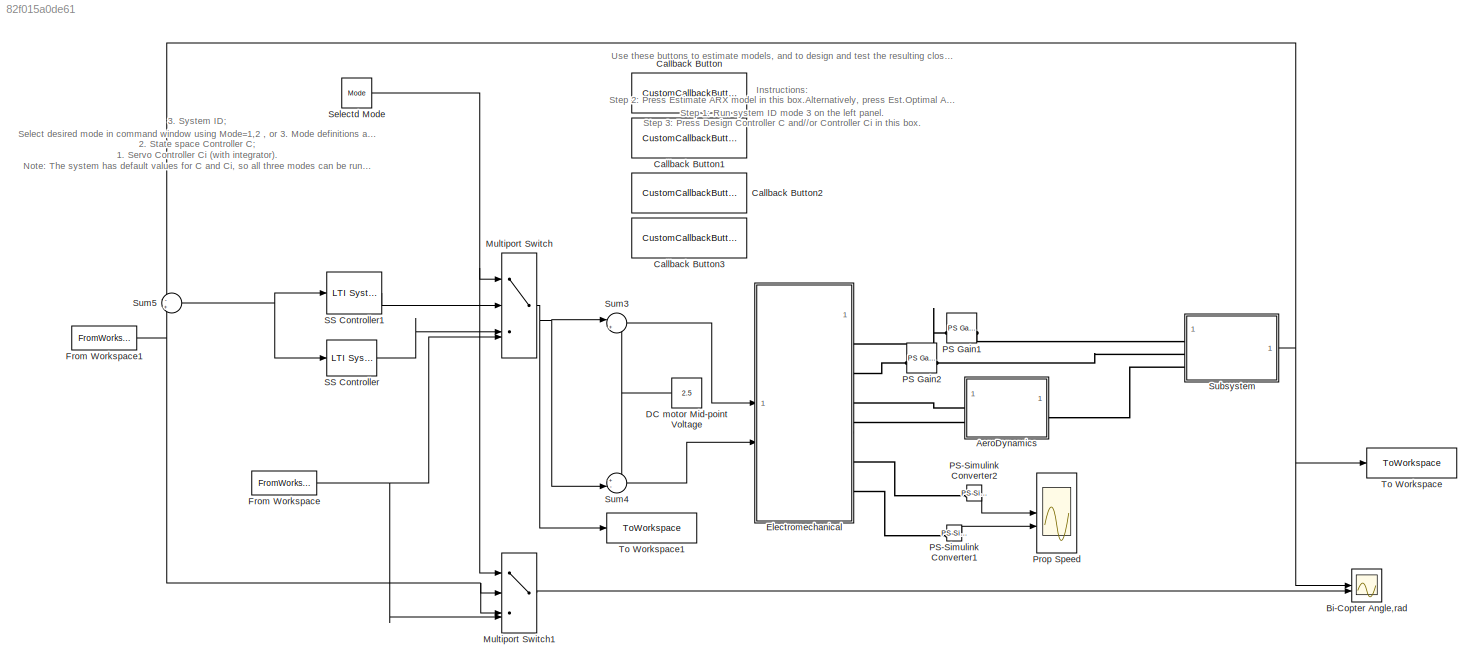
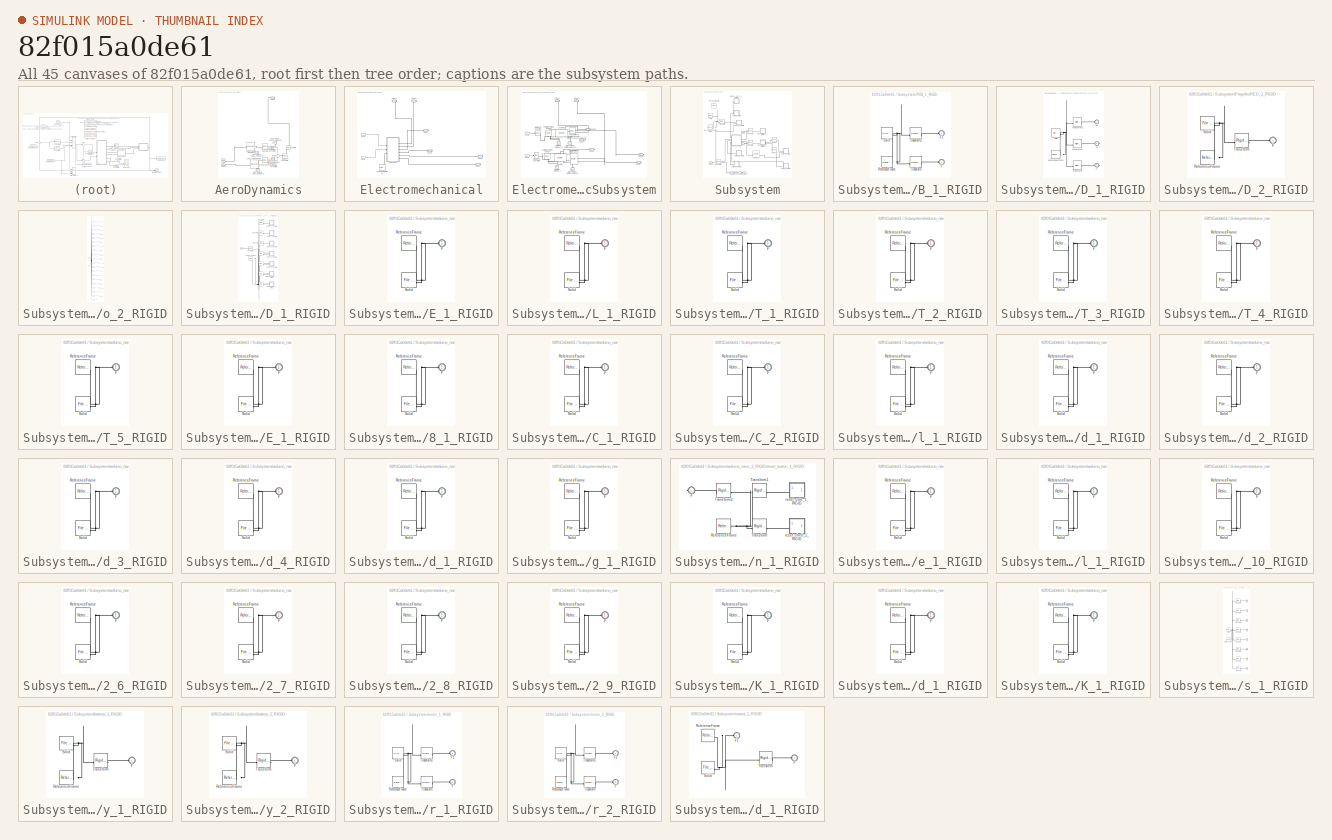
[diagram: thumbnail index - all 45 canvases of the model, root first then tree order]
MODEL slx_82f015a0de61
KIND model
CONFIG AbsTol = auto
CONFIG EnableMultiTasking = off
CONFIG FixedStep = .1
CONFIG MaxStep = auto
CONFIG MinStep = auto
CONFIG PreLoadFcn = t=[0:0.1:50];\ntest=[[0:0.1:50]' idinput(501,'rbs',[0 0.34])*1.5];\nref=[t' 0.5*(t<20)'-0.5*(t>=20)'];\nA=[    0.2836   -0.3349    0.0364   -0.0005    0.0000   -0.0002\n    0.7498    0.6987   -0.1388    0.0037    0.0004    0.0015\n   -0.1675    1.1221    0.3136    0.0165   -0.0017    0.0019\n    0.6639   -1.4850    0.9885    0.9441   -0.0081    0.0373\n    0.1266    0.2093   -0.2382   -0.0573    0.0678  ...<+1098ch>
CONFIG RelTol = 1e-3
CONFIG SampleTimeConstraint = Unconstrained
CONFIG SolverName = FixedStepAuto
CONFIG StartTime = 0.0
CONFIG StopTime = 50
WORKSPACE source: external: MATLAB File  (data not in archive)
BLOCK [SubSystem] AeroDynamics
BLOCK [Reference] AeroDynamics/Aerodynamic Propeller  REF=sdl_lib/Engines & Motors/Aerodynamic
Propeller
  SourceBlock = sdl_lib/Engines & Motors/Aerodynamic\nPropeller
  SourceType = Aerodynamic\nPropeller
BLOCK [Reference] AeroDynamics/Aerodynamic Propeller1  REF=sdl_lib/Engines & Motors/Aerodynamic
Propeller
  SourceBlock = sdl_lib/Engines & Motors/Aerodynamic\nPropeller
  SourceType = Aerodynamic\nPropeller
BLOCK [PMIOPort] AeroDynamics/Conn2
  Port = 2
  Side = Left
BLOCK [PMIOPort] AeroDynamics/Conn3
  Port = 3
  Side = Left
BLOCK [Reference] AeroDynamics/Ideal Force Sensor  REF=fl_lib/Mechanical/Mechanical Sensors/Ideal Force Sensor
  SourceBlock = fl_lib/Mechanical/Mechanical Sensors/Ideal Force Sensor
  SourceType = Ideal Force Sensor
BLOCK [Reference] AeroDynamics/Ideal Force Sensor1  REF=fl_lib/Mechanical/Mechanical Sensors/Ideal Force Sensor
  SourceBlock = fl_lib/Mechanical/Mechanical Sensors/Ideal Force Sensor
  SourceType = Ideal Force Sensor
BLOCK [Reference] AeroDynamics/Mechanical Translational Reference  REF=fl_lib/Mechanical/Translational
Elements/Mechanical
Translational
Reference
  NameLocation = right
  SourceBlock = fl_lib/Mechanical/Translational\nElements/Mechanical\nTranslational\nReference
  SourceType = Mechanical\nTranslational\nReference
BLOCK [Reference] AeroDynamics/Mechanical Translational Reference1  REF=fl_lib/Mechanical/Translational
Elements/Mechanical
Translational
Reference
  NameLocation = top
  SourceBlock = fl_lib/Mechanical/Translational\nElements/Mechanical\nTranslational\nReference
  SourceType = Mechanical\nTranslational\nReference
BLOCK [Reference] AeroDynamics/Mechanical Translational Reference2  REF=fl_lib/Mechanical/Translational
Elements/Mechanical
Translational
Reference
  NameLocation = right
  SourceBlock = fl_lib/Mechanical/Translational\nElements/Mechanical\nTranslational\nReference
  SourceType = Mechanical\nTranslational\nReference
BLOCK [Reference] AeroDynamics/Mechanical Translational Reference3  REF=fl_lib/Mechanical/Translational
Elements/Mechanical
Translational
Reference
  NameLocation = top
  SourceBlock = fl_lib/Mechanical/Translational\nElements/Mechanical\nTranslational\nReference
  SourceType = Mechanical\nTranslational\nReference
BLOCK [Reference] AeroDynamics/PS Gain  REF=fl_lib/Physical Signals/Functions/PS Gain
  NameLocation = right
  SourceBlock = fl_lib/Physical Signals/Functions/PS Gain
  SourceType = PS Gain
BLOCK [Reference] AeroDynamics/PS-Simulink Converter3  REF=nesl_utility/PS-Simulink
Converter
  SourceBlock = nesl_utility/PS-Simulink\nConverter
  SourceType = PS-Simulink\nConverter
BLOCK [Reference] AeroDynamics/PS-Simulink Converter4  REF=nesl_utility/PS-Simulink
Converter
  SourceBlock = nesl_utility/PS-Simulink\nConverter
  SourceType = PS-Simulink\nConverter
BLOCK [Reference] AeroDynamics/Simulink-PS Converter1  REF=nesl_utility/Simulink-PS
Converter
  SourceBlock = nesl_utility/Simulink-PS\nConverter
  SourceType = Simulink-PS\nConverter
BLOCK [Sum] AeroDynamics/Sum2
  Inputs = +-
BLOCK [PMIOPort] AeroDynamics/Torque
  Side = Right
BLOCK [Scope] Bi-Copter Angle,rad
  Floating = off
  NumInputPorts = 2
  ScopeSpecificationString = Simulink.scopes.TimeScopeBlockCfg('CurrentConfiguration', extmgr.ConfigurationSet(extmgr.Configuration('Core','General UI',true),extmgr.Configuration('Core','Source UI',true),extmgr.Configuration('Sources','WiredSimulink',true,'DataLoggingVariableName','ScopeData1'),extmgr.Configuration('Visuals','Time Domain',true,'SerializedDisplays',{struct('MinYLimReal','-2.07623','MaxYLimReal','2.90064','YLab...<+1582ch>
BLOCK [CustomCallbackButton] Callback Button
  Configuration = {"components":[{"name":"BackgroundImageComponent","settings":{"image":{"size":[0,0],"src":"default","srcOrientation":"Right"},"position":[0,0,1,1]}},{"name":"ButtonStateComponent","settings":{"buttonType":"momentary","clickFcn":"dat=iddata(out.y.data(160:end),out.u.data(160:end),0.1)\nsys=arx(dat,[6 6 0])\ncompare(dat,sys);shg","latched":true,"offValue":0,"onValue":1,"position":[0,0,1,1],"pressDel...<+2288ch>
  CustomBackgroundColor = {"color":[0.9568627451,0.9568627451,0.9568627451],"show":true}
BLOCK [CustomCallbackButton] Callback Button1
  Configuration = {"components":[{"name":"BackgroundImageComponent","settings":{"image":{"size":[0,0],"src":"default","srcOrientation":"Right"},"position":[0,0,1,1]}},{"name":"ButtonStateComponent","settings":{"buttonType":"momentary","clickFcn":"syss=ss(sys);\n[K,S,CLP] = dlqr(syss.A,syss.B,syss.C'*syss.C,.0008,0)\nKe =acker(syss.A',syss.C',CLP)'\nAoc=syss.A-syss.B*K-Ke*syss.C;Boc=Ke;Coc=K;\nC=ss(Aoc,Boc,Coc,0,0.1...<+2415ch>
  CustomBackgroundColor = {"color":[0.9568627451,0.9568627451,0.9568627451],"show":true}
BLOCK [CustomCallbackButton] Callback Button2
  Configuration = {"components":[{"name":"BackgroundImageComponent","settings":{"image":{"size":[0,0],"src":"default","srcOrientation":"Right"},"position":[0,0,1,1]}},{"name":"ButtonStateComponent","settings":{"buttonType":"momentary","clickFcn":"syss=ss(sys);\n[K,S,CLP] = dlqr(syss.A,syss.B,syss.C'*syss.C,.0008,0)\nKe =acker(syss.A',syss.C',CLP)'\nAoc=syss.A-syss.B*K-Ke*syss.C;Boc=Ke;Coc=K;\n% Integrator added to ...<+2716ch>
  CustomBackgroundColor = {"color":[0.9568627451,0.9568627451,0.9568627451],"show":true}
BLOCK [CustomCallbackButton] Callback Button3
  Configuration = {"components":[{"name":"BackgroundImageComponent","settings":{"image":{"size":[0,0],"src":"default","srcOrientation":"Right"},"position":[0,0,1,1]}},{"name":"ButtonStateComponent","settings":{"buttonType":"momentary","clickFcn":"dat=iddata(out.y.data(160:end),out.u.data(160:end),0.1);\nNN = struc(3:10,3:10,0:10);\nV = arxstruc(dat,dat,NN);\nS=selstruc(V)\nsys=arx(dat,S)\ncompare(dat,sys)","latched...<+2391ch>
  CustomBackgroundColor = {"color":[0.9568627451,0.9568627451,0.9568627451],"show":true}
BLOCK [Constant] DC motor Mid-point Voltage
  Value = 2.5
BLOCK [SubSystem] Electromechanical
BLOCK [PMIOPort] Electromechanical/Conn1
  Side = Right
BLOCK [PMIOPort] Electromechanical/Conn2
  Port = 2
  Side = Right
BLOCK [PMIOPort] Electromechanical/Conn3
  Port = 3
  Side = Right
BLOCK [PMIOPort] Electromechanical/Conn5
  Port = 4
  Side = Right
BLOCK [PMIOPort] Electromechanical/Conn6
  Port = 5
  Side = Right
BLOCK [PMIOPort] Electromechanical/Conn7
  Port = 6
  Side = Right
BLOCK [Reference] Electromechanical/Solver Configuration2  REF=nesl_utility/Solver
Configuration
  NameLocation = right
  SourceBlock = nesl_utility/Solver\nConfiguration
  SourceType = Solver\nConfiguration
BLOCK [SubSystem] Electromechanical/Subsystem
BLOCK [PMIOPort] Electromechanical/Subsystem/Conn1
  Side = Right
BLOCK [PMIOPort] Electromechanical/Subsystem/Conn2
  Port = 2
  Side = Right
BLOCK [PMIOPort] Electromechanical/Subsystem/Conn3
  Port = 3
  Side = Right
BLOCK [PMIOPort] Electromechanical/Subsystem/Conn4
  Port = 4
  Side = Left
BLOCK [PMIOPort] Electromechanical/Subsystem/Conn5
  Port = 5
  Side = Right
BLOCK [PMIOPort] Electromechanical/Subsystem/Conn6
  Port = 6
  Side = Right
BLOCK [PMIOPort] Electromechanical/Subsystem/Conn7
  Port = 7
  Side = Right
BLOCK [Reference] Electromechanical/Subsystem/Controlled Voltage Source  REF=fl_lib/Electrical/Electrical Sources/Controlled Voltage
Source
  NameLocation = right
  SourceBlock = fl_lib/Electrical/Electrical Sources/Controlled Voltage\nSource
  SourceType = Controlled Voltage\nSource
BLOCK [Reference] Electromechanical/Subsystem/Controlled Voltage Source1  REF=fl_lib/Electrical/Electrical Sources/Controlled Voltage
Source
  NameLocation = right
  SourceBlock = fl_lib/Electrical/Electrical Sources/Controlled Voltage\nSource
  SourceType = Controlled Voltage\nSource
BLOCK [Reference] Electromechanical/Subsystem/DC Motor  REF=ee_lib/Electromechanical/Brushed Motors/DC Motor
  NameLocation = right
  SourceBlock = ee_lib/Electromechanical/Brushed Motors/DC Motor
  SourceType = DC Motor
BLOCK [Reference] Electromechanical/Subsystem/DC Motor1  REF=ee_lib/Electromechanical/Brushed Motors/DC Motor
  NameLocation = right
  SourceBlock = ee_lib/Electromechanical/Brushed Motors/DC Motor
  SourceType = DC Motor
BLOCK [Reference] Electromechanical/Subsystem/Electrical Reference  REF=fl_lib/Electrical/Electrical Elements/Electrical Reference
  LibrarySourceBlock = ee_lib/Connectors &\nReferences/Electrical Reference
  NameLocation = right
  SourceBlock = fl_lib/Electrical/Electrical Elements/Electrical Reference
  SourceType = Electrical Reference
BLOCK [Reference] Electromechanical/Subsystem/Electrical Reference1  REF=fl_lib/Electrical/Electrical Elements/Electrical Reference
  NameLocation = right
  SourceBlock = fl_lib/Electrical/Electrical Elements/Electrical Reference
  SourceType = Electrical Reference
BLOCK [Reference] Electromechanical/Subsystem/Ideal Rotational Motion Sensor  REF=fl_lib/Mechanical/Mechanical Sensors/Ideal Rotational
Motion Sensor
  SourceBlock = fl_lib/Mechanical/Mechanical Sensors/Ideal Rotational\nMotion Sensor
  SourceType = Ideal Rotational\nMotion Sensor
BLOCK [Reference] Electromechanical/Subsystem/Ideal Rotational Motion Sensor1  REF=fl_lib/Mechanical/Mechanical Sensors/Ideal Rotational
Motion Sensor
  SourceBlock = fl_lib/Mechanical/Mechanical Sensors/Ideal Rotational\nMotion Sensor
  SourceType = Ideal Rotational\nMotion Sensor
BLOCK [Reference] Electromechanical/Subsystem/Mechanical Rotational Reference  REF=fl_lib/Mechanical/Rotational Elements/Mechanical
Rotational Reference
  SourceBlock = fl_lib/Mechanical/Rotational Elements/Mechanical\nRotational Reference
  SourceType = Mechanical\nRotational Reference
BLOCK [Reference] Electromechanical/Subsystem/Mechanical Rotational Reference1  REF=fl_lib/Mechanical/Rotational Elements/Mechanical
Rotational Reference
  SourceBlock = fl_lib/Mechanical/Rotational Elements/Mechanical\nRotational Reference
  SourceType = Mechanical\nRotational Reference
BLOCK [Reference] Electromechanical/Subsystem/Simulink-PS Converter  REF=nesl_utility/Simulink-PS
Converter
  SourceBlock = nesl_utility/Simulink-PS\nConverter
  SourceType = Simulink-PS\nConverter
BLOCK [Reference] Electromechanical/Subsystem/Simulink-PS Converter2  REF=nesl_utility/Simulink-PS
Converter
  SourceBlock = nesl_utility/Simulink-PS\nConverter
  SourceType = Simulink-PS\nConverter
BLOCK [Inport] Electromechanical/Subsystem/input0
BLOCK [Inport] Electromechanical/Subsystem/input1
  Port = 2
BLOCK [Inport] Electromechanical/input0
BLOCK [Inport] Electromechanical/input1
  Port = 2
BLOCK [FromWorkspace] From Workspace
  VariableName = test
BLOCK [FromWorkspace] From Workspace1
  VariableName = ref
BLOCK [MultiPortSwitch] Multiport Switch
  InputSameDT = off
  SaturateOnIntegerOverflow = off
BLOCK [MultiPortSwitch] Multiport Switch1
  InputSameDT = off
  SaturateOnIntegerOverflow = off
BLOCK [Reference] PS Gain1  REF=fl_lib/Physical Signals/Functions/PS Gain
  SourceBlock = fl_lib/Physical Signals/Functions/PS Gain
  SourceType = PS Gain
BLOCK [Reference] PS Gain2  REF=fl_lib/Physical Signals/Functions/PS Gain
  SourceBlock = fl_lib/Physical Signals/Functions/PS Gain
  SourceType = PS Gain
BLOCK [Reference] PS-Simulink Converter1  REF=nesl_utility/PS-Simulink
Converter
  SourceBlock = nesl_utility/PS-Simulink\nConverter
  SourceType = PS-Simulink\nConverter
BLOCK [Reference] PS-Simulink Converter2  REF=nesl_utility/PS-Simulink
Converter
  SourceBlock = nesl_utility/PS-Simulink\nConverter
  SourceType = PS-Simulink\nConverter
BLOCK [Scope] Prop Speed
  Floating = off
  NumInputPorts = 2
  ScopeSpecificationString = Simulink.scopes.TimeScopeBlockCfg('CurrentConfiguration', extmgr.ConfigurationSet(extmgr.Configuration('Core','General UI',true),extmgr.Configuration('Core','Source UI',true),extmgr.Configuration('Sources','WiredSimulink',true),extmgr.Configuration('Visuals','Time Domain',true,'SerializedDisplays',{struct('MinYLimReal','-248.93521','MaxYLimReal','2240.41689','YLabelReal','','MinYLimMag',' 0.00000'...<+1492ch>
BLOCK [Reference] SS Controller  REF=cstblocks/LTI System
  SourceBlock = cstblocks/LTI System
  SourceType = LTI Block
BLOCK [Reference] SS Controller1  REF=cstblocks/LTI System
  SourceBlock = cstblocks/LTI System
  SourceType = LTI Block
BLOCK [Constant] Selectd Mode
  Value = Mode
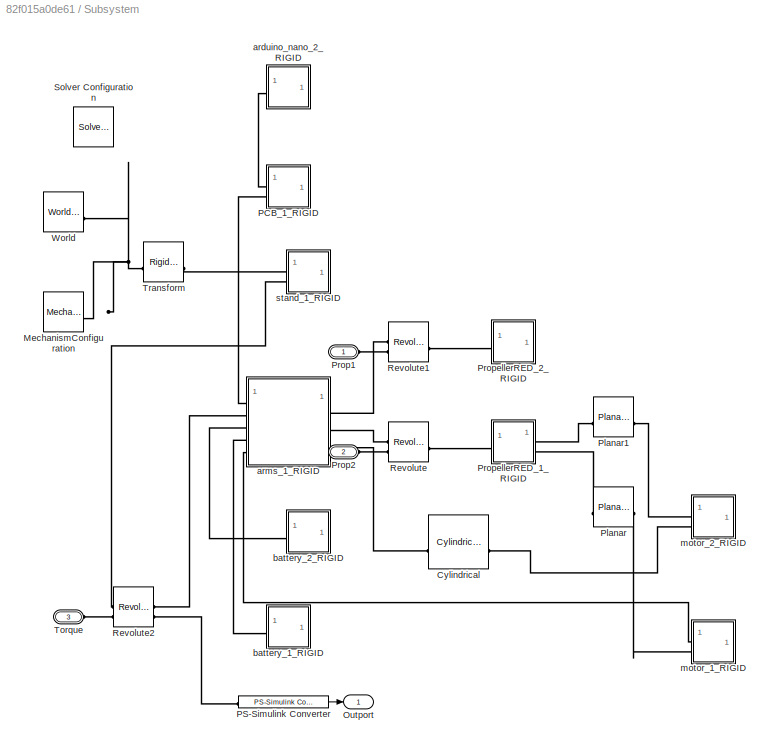
BLOCK [SubSystem] Subsystem
BLOCK [Reference] Subsystem/Cylindrical  REF=sm_lib/Joints/Cylindrical
Joint
  SourceBlock = sm_lib/Joints/Cylindrical\nJoint
  SourceType = Cylindrical\nJoint
BLOCK [Reference] Subsystem/MechanismConfiguration  REF=sm_lib/Utilities/Mechanism
Configuration
  SourceBlock = sm_lib/Utilities/Mechanism\nConfiguration
  SourceType = Mechanism\nConfiguration
BLOCK [Outport] Subsystem/Outport
BLOCK [SubSystem] Subsystem/PCB_1_RIGID
BLOCK [PMIOPort] Subsystem/PCB_1_RIGID/F
  Port = 2
  Side = Left
BLOCK [PMIOPort] Subsystem/PCB_1_RIGID/F1
  Side = Left
BLOCK [Reference] Subsystem/PCB_1_RIGID/ReferenceFrame  REF=sm_lib/Frames and
Transforms/Reference
Frame
  SourceBlock = sm_lib/Frames and\nTransforms/Reference\nFrame
  SourceType = Reference\nFrame
BLOCK [Reference] Subsystem/PCB_1_RIGID/Solid  REF=sm_lib/Body Elements/File Solid
  SourceBlock = sm_lib/Body Elements/File Solid
  SourceType = File Solid
BLOCK [Reference] Subsystem/PCB_1_RIGID/Transform  REF=sm_lib/Frames and
Transforms/Rigid
Transform
  SourceBlock = sm_lib/Frames and\nTransforms/Rigid\nTransform
  SourceType = Rigid\nTransform
BLOCK [Reference] Subsystem/PCB_1_RIGID/Transform1  REF=sm_lib/Frames and
Transforms/Rigid
Transform
  SourceBlock = sm_lib/Frames and\nTransforms/Rigid\nTransform
  SourceType = Rigid\nTransform
BLOCK [Reference] Subsystem/PS-Simulink Converter  REF=nesl_utility/PS-Simulink
Converter
  SourceBlock = nesl_utility/PS-Simulink\nConverter
  SourceType = PS-Simulink\nConverter
BLOCK [Reference] Subsystem/Planar  REF=sm_lib/Joints/Planar Joint
  SourceBlock = sm_lib/Joints/Planar Joint
  SourceType = Planar Joint
BLOCK [Reference] Subsystem/Planar1  REF=sm_lib/Joints/Planar Joint
  SourceBlock = sm_lib/Joints/Planar Joint
  SourceType = Planar Joint
BLOCK [PMIOPort] Subsystem/Prop1
  Side = Left
BLOCK [PMIOPort] Subsystem/Prop2
  Port = 2
  Side = Left
BLOCK [SubSystem] Subsystem/PropellerRED_1_RIGID
BLOCK [PMIOPort] Subsystem/PropellerRED_1_RIGID/F
  Port = 3
  Side = Right
BLOCK [PMIOPort] Subsystem/PropellerRED_1_RIGID/F1
  Port = 2
  Side = Right
BLOCK [PMIOPort] Subsystem/PropellerRED_1_RIGID/F2
  Side = Left
BLOCK [Reference] Subsystem/PropellerRED_1_RIGID/ReferenceFrame  REF=sm_lib/Frames and
Transforms/Reference
Frame
  SourceBlock = sm_lib/Frames and\nTransforms/Reference\nFrame
  SourceType = Reference\nFrame
BLOCK [Reference] Subsystem/PropellerRED_1_RIGID/Solid  REF=sm_lib/Body Elements/File Solid
  SourceBlock = sm_lib/Body Elements/File Solid
  SourceType = File Solid
BLOCK [Reference] Subsystem/PropellerRED_1_RIGID/Transform  REF=sm_lib/Frames and
Transforms/Rigid
Transform
  SourceBlock = sm_lib/Frames and\nTransforms/Rigid\nTransform
  SourceType = Rigid\nTransform
BLOCK [Reference] Subsystem/PropellerRED_1_RIGID/Transform1  REF=sm_lib/Frames and
Transforms/Rigid
Transform
  SourceBlock = sm_lib/Frames and\nTransforms/Rigid\nTransform
  SourceType = Rigid\nTransform
BLOCK [Reference] Subsystem/PropellerRED_1_RIGID/Transform2  REF=sm_lib/Frames and
Transforms/Rigid
Transform
  SourceBlock = sm_lib/Frames and\nTransforms/Rigid\nTransform
  SourceType = Rigid\nTransform
BLOCK [SubSystem] Subsystem/PropellerRED_2_RIGID
BLOCK [PMIOPort] Subsystem/PropellerRED_2_RIGID/F
  Side = Left
BLOCK [Reference] Subsystem/PropellerRED_2_RIGID/ReferenceFrame  REF=sm_lib/Frames and
Transforms/Reference
Frame
  SourceBlock = sm_lib/Frames and\nTransforms/Reference\nFrame
  SourceType = Reference\nFrame
BLOCK [Reference] Subsystem/PropellerRED_2_RIGID/Solid  REF=sm_lib/Body Elements/File Solid
  SourceBlock = sm_lib/Body Elements/File Solid
  SourceType = File Solid
BLOCK [Reference] Subsystem/PropellerRED_2_RIGID/Transform  REF=sm_lib/Frames and
Transforms/Rigid
Transform
  SourceBlock = sm_lib/Frames and\nTransforms/Rigid\nTransform
  SourceType = Rigid\nTransform
BLOCK [Reference] Subsystem/Revolute  REF=sm_lib/Joints/Revolute Joint
  SourceBlock = sm_lib/Joints/Revolute Joint
  SourceType = Revolute Joint
BLOCK [Reference] Subsystem/Revolute1  REF=sm_lib/Joints/Revolute Joint
  SourceBlock = sm_lib/Joints/Revolute Joint
  SourceType = Revolute Joint
BLOCK [Reference] Subsystem/Revolute2  REF=sm_lib/Joints/Revolute Joint
  SourceBlock = sm_lib/Joints/Revolute Joint
  SourceType = Revolute Joint
BLOCK [Reference] Subsystem/Solver Configuration  REF=nesl_utility/Solver
Configuration
  SourceBlock = nesl_utility/Solver\nConfiguration
  SourceType = Solver\nConfiguration
BLOCK [PMIOPort] Subsystem/Torque
  Port = 3
  Side = Left
BLOCK [Reference] Subsystem/Transform  REF=sm_lib/Frames and
Transforms/Rigid
Transform
  SourceBlock = sm_lib/Frames and\nTransforms/Rigid\nTransform
  SourceType = Rigid\nTransform
BLOCK [Reference] Subsystem/World  REF=sm_lib/Frames and
Transforms/World Frame
  SourceBlock = sm_lib/Frames and\nTransforms/World Frame
  SourceType = World Frame
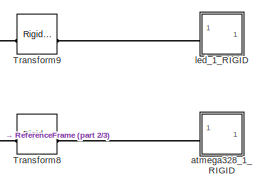
[diagram: Subsystem/arduino_nano_2_RIGID - part 1/3, top center region]
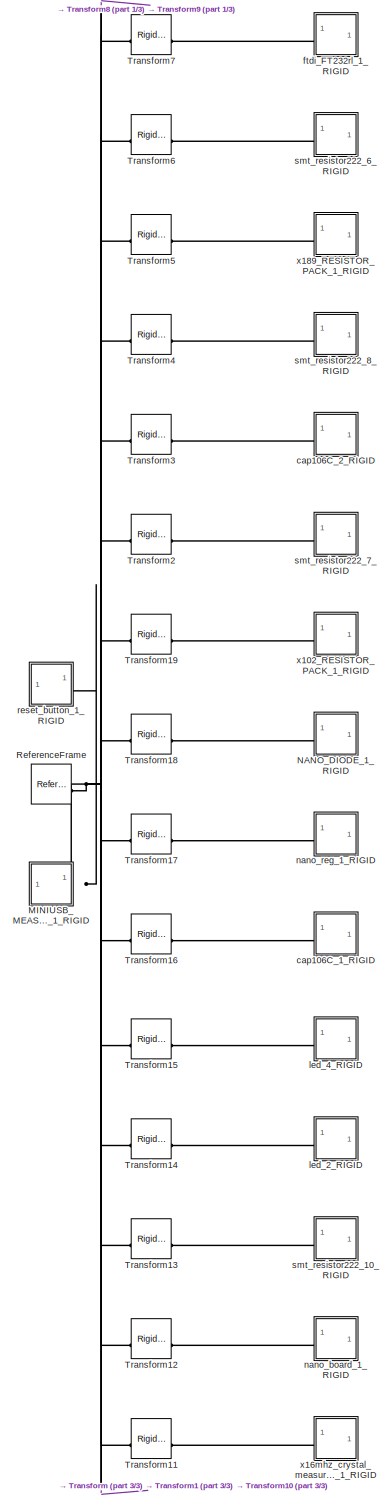
[diagram: Subsystem/arduino_nano_2_RIGID - part 2/3, full width, middle band]
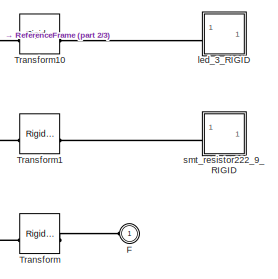
[diagram: Subsystem/arduino_nano_2_RIGID - part 3/3, bottom center region]
BLOCK [SubSystem] Subsystem/arduino_nano_2_RIGID
BLOCK [PMIOPort] Subsystem/arduino_nano_2_RIGID/F
  Side = Left
BLOCK [SubSystem] Subsystem/arduino_nano_2_RIGID/MINIUSB_MEASURED_1_RIGID
BLOCK [PMIOPort] Subsystem/arduino_nano_2_RIGID/MINIUSB_MEASURED_1_RIGID/F
  Side = Right
BLOCK [SubSystem] Subsystem/arduino_nano_2_RIGID/MINIUSB_MEASURED_1_RIGID/MINIUSBCORE_1_RIGID
BLOCK [PMIOPort] Subsystem/arduino_nano_2_RIGID/MINIUSB_MEASURED_1_RIGID/MINIUSBCORE_1_RIGID/F
  Side = Left
BLOCK [Reference] Subsystem/arduino_nano_2_RIGID/MINIUSB_MEASURED_1_RIGID/MINIUSBCORE_1_RIGID/ReferenceFrame  REF=sm_lib/Frames and
Transforms/Reference
Frame
  SourceBlock = sm_lib/Frames and\nTransforms/Reference\nFrame
  SourceType = Reference\nFrame
BLOCK [Reference] Subsystem/arduino_nano_2_RIGID/MINIUSB_MEASURED_1_RIGID/MINIUSBCORE_1_RIGID/Solid  REF=sm_lib/Body Elements/File Solid
  SourceBlock = sm_lib/Body Elements/File Solid
  SourceType = File Solid
BLOCK [SubSystem] Subsystem/arduino_nano_2_RIGID/MINIUSB_MEASURED_1_RIGID/MINIUSBSHELL_1_RIGID
BLOCK [PMIOPort] Subsystem/arduino_nano_2_RIGID/MINIUSB_MEASURED_1_RIGID/MINIUSBSHELL_1_RIGID/F
  Side = Left
BLOCK [Reference] Subsystem/arduino_nano_2_RIGID/MINIUSB_MEASURED_1_RIGID/MINIUSBSHELL_1_RIGID/ReferenceFrame  REF=sm_lib/Frames and
Transforms/Reference
Frame
  SourceBlock = sm_lib/Frames and\nTransforms/Reference\nFrame
  SourceType = Reference\nFrame
BLOCK [Reference] Subsystem/arduino_nano_2_RIGID/MINIUSB_MEASURED_1_RIGID/MINIUSBSHELL_1_RIGID/Solid  REF=sm_lib/Body Elements/File Solid
  SourceBlock = sm_lib/Body Elements/File Solid
  SourceType = File Solid
BLOCK [SubSystem] Subsystem/arduino_nano_2_RIGID/MINIUSB_MEASURED_1_RIGID/MINI_USB_CONTACT_1_RIGID
BLOCK [PMIOPort] Subsystem/arduino_nano_2_RIGID/MINIUSB_MEASURED_1_RIGID/MINI_USB_CONTACT_1_RIGID/F
  Side = Left
BLOCK [Reference] Subsystem/arduino_nano_2_RIGID/MINIUSB_MEASURED_1_RIGID/MINI_USB_CONTACT_1_RIGID/ReferenceFrame  REF=sm_lib/Frames and
Transforms/Reference
Frame
  SourceBlock = sm_lib/Frames and\nTransforms/Reference\nFrame
  SourceType = Reference\nFrame
BLOCK [Reference] Subsystem/arduino_nano_2_RIGID/MINIUSB_MEASURED_1_RIGID/MINI_USB_CONTACT_1_RIGID/Solid  REF=sm_lib/Body Elements/File Solid
  SourceBlock = sm_lib/Body Elements/File Solid
  SourceType = File Solid
BLOCK [SubSystem] Subsystem/arduino_nano_2_RIGID/MINIUSB_MEASURED_1_RIGID/MINI_USB_CONTACT_2_RIGID
BLOCK [PMIOPort] Subsystem/arduino_nano_2_RIGID/MINIUSB_MEASURED_1_RIGID/MINI_USB_CONTACT_2_RIGID/F
  Side = Left
BLOCK [Reference] Subsystem/arduino_nano_2_RIGID/MINIUSB_MEASURED_1_RIGID/MINI_USB_CONTACT_2_RIGID/ReferenceFrame  REF=sm_lib/Frames and
Transforms/Reference
Frame
  SourceBlock = sm_lib/Frames and\nTransforms/Reference\nFrame
  SourceType = Reference\nFrame
BLOCK [Reference] Subsystem/arduino_nano_2_RIGID/MINIUSB_MEASURED_1_RIGID/MINI_USB_CONTACT_2_RIGID/Solid  REF=sm_lib/Body Elements/File Solid
  SourceBlock = sm_lib/Body Elements/File Solid
  SourceType = File Solid
BLOCK [SubSystem] Subsystem/arduino_nano_2_RIGID/MINIUSB_MEASURED_1_RIGID/MINI_USB_CONTACT_3_RIGID
BLOCK [PMIOPort] Subsystem/arduino_nano_2_RIGID/MINIUSB_MEASURED_1_RIGID/MINI_USB_CONTACT_3_RIGID/F
  Side = Left
BLOCK [Reference] Subsystem/arduino_nano_2_RIGID/MINIUSB_MEASURED_1_RIGID/MINI_USB_CONTACT_3_RIGID/ReferenceFrame  REF=sm_lib/Frames and
Transforms/Reference
Frame
  SourceBlock = sm_lib/Frames and\nTransforms/Reference\nFrame
  SourceType = Reference\nFrame
BLOCK [Reference] Subsystem/arduino_nano_2_RIGID/MINIUSB_MEASURED_1_RIGID/MINI_USB_CONTACT_3_RIGID/Solid  REF=sm_lib/Body Elements/File Solid
  SourceBlock = sm_lib/Body Elements/File Solid
  SourceType = File Solid
BLOCK [SubSystem] Subsystem/arduino_nano_2_RIGID/MINIUSB_MEASURED_1_RIGID/MINI_USB_CONTACT_4_RIGID
BLOCK [PMIOPort] Subsystem/arduino_nano_2_RIGID/MINIUSB_MEASURED_1_RIGID/MINI_USB_CONTACT_4_RIGID/F
  Side = Left
BLOCK [Reference] Subsystem/arduino_nano_2_RIGID/MINIUSB_MEASURED_1_RIGID/MINI_USB_CONTACT_4_RIGID/ReferenceFrame  REF=sm_lib/Frames and
Transforms/Reference
Frame
  SourceBlock = sm_lib/Frames and\nTransforms/Reference\nFrame
  SourceType = Reference\nFrame
BLOCK [Reference] Subsystem/arduino_nano_2_RIGID/MINIUSB_MEASURED_1_RIGID/MINI_USB_CONTACT_4_RIGID/Solid  REF=sm_lib/Body Elements/File Solid
  SourceBlock = sm_lib/Body Elements/File Solid
  SourceType = File Solid
BLOCK [SubSystem] Subsystem/arduino_nano_2_RIGID/MINIUSB_MEASURED_1_RIGID/MINI_USB_CONTACT_5_RIGID
BLOCK [PMIOPort] Subsystem/arduino_nano_2_RIGID/MINIUSB_MEASURED_1_RIGID/MINI_USB_CONTACT_5_RIGID/F
  Side = Left
BLOCK [Reference] Subsystem/arduino_nano_2_RIGID/MINIUSB_MEASURED_1_RIGID/MINI_USB_CONTACT_5_RIGID/ReferenceFrame  REF=sm_lib/Frames and
Transforms/Reference
Frame
  SourceBlock = sm_lib/Frames and\nTransforms/Reference\nFrame
  SourceType = Reference\nFrame
BLOCK [Reference] Subsystem/arduino_nano_2_RIGID/MINIUSB_MEASURED_1_RIGID/MINI_USB_CONTACT_5_RIGID/Solid  REF=sm_lib/Body Elements/File Solid
  SourceBlock = sm_lib/Body Elements/File Solid
  SourceType = File Solid
BLOCK [Reference] Subsystem/arduino_nano_2_RIGID/MINIUSB_MEASURED_1_RIGID/ReferenceFrame  REF=sm_lib/Frames and
Transforms/Reference
Frame
  SourceBlock = sm_lib/Frames and\nTransforms/Reference\nFrame
  SourceType = Reference\nFrame
BLOCK [Reference] Subsystem/arduino_nano_2_RIGID/MINIUSB_MEASURED_1_RIGID/Transform  REF=sm_lib/Frames and
Transforms/Rigid
Transform
  SourceBlock = sm_lib/Frames and\nTransforms/Rigid\nTransform
  SourceType = Rigid\nTransform
BLOCK [Reference] Subsystem/arduino_nano_2_RIGID/MINIUSB_MEASURED_1_RIGID/Transform1  REF=sm_lib/Frames and
Transforms/Rigid
Transform
  SourceBlock = sm_lib/Frames and\nTransforms/Rigid\nTransform
  SourceType = Rigid\nTransform
BLOCK [Reference] Subsystem/arduino_nano_2_RIGID/MINIUSB_MEASURED_1_RIGID/Transform2  REF=sm_lib/Frames and
Transforms/Rigid
Transform
  SourceBlock = sm_lib/Frames and\nTransforms/Rigid\nTransform
  SourceType = Rigid\nTransform
BLOCK [Reference] Subsystem/arduino_nano_2_RIGID/MINIUSB_MEASURED_1_RIGID/Transform3  REF=sm_lib/Frames and
Transforms/Rigid
Transform
  SourceBlock = sm_lib/Frames and\nTransforms/Rigid\nTransform
  SourceType = Rigid\nTransform
BLOCK [Reference] Subsystem/arduino_nano_2_RIGID/MINIUSB_MEASURED_1_RIGID/Transform4  REF=sm_lib/Frames and
Transforms/Rigid
Transform
  SourceBlock = sm_lib/Frames and\nTransforms/Rigid\nTransform
  SourceType = Rigid\nTransform
BLOCK [Reference] Subsystem/arduino_nano_2_RIGID/MINIUSB_MEASURED_1_RIGID/Transform5  REF=sm_lib/Frames and
Transforms/Rigid
Transform
  SourceBlock = sm_lib/Frames and\nTransforms/Rigid\nTransform
  SourceType = Rigid\nTransform
BLOCK [Reference] Subsystem/arduino_nano_2_RIGID/MINIUSB_MEASURED_1_RIGID/Transform6  REF=sm_lib/Frames and
Transforms/Rigid
Transform
  SourceBlock = sm_lib/Frames and\nTransforms/Rigid\nTransform
  SourceType = Rigid\nTransform
BLOCK [Reference] Subsystem/arduino_nano_2_RIGID/MINIUSB_MEASURED_1_RIGID/Transform7  REF=sm_lib/Frames and
Transforms/Rigid
Transform
  SourceBlock = sm_lib/Frames and\nTransforms/Rigid\nTransform
  SourceType = Rigid\nTransform
BLOCK [SubSystem] Subsystem/arduino_nano_2_RIGID/NANO_DIODE_1_RIGID
BLOCK [PMIOPort] Subsystem/arduino_nano_2_RIGID/NANO_DIODE_1_RIGID/F
  Side = Left
BLOCK [Reference] Subsystem/arduino_nano_2_RIGID/NANO_DIODE_1_RIGID/ReferenceFrame  REF=sm_lib/Frames and
Transforms/Reference
Frame
  SourceBlock = sm_lib/Frames and\nTransforms/Reference\nFrame
  SourceType = Reference\nFrame
BLOCK [Reference] Subsystem/arduino_nano_2_RIGID/NANO_DIODE_1_RIGID/Solid  REF=sm_lib/Body Elements/File Solid
  SourceBlock = sm_lib/Body Elements/File Solid
  SourceType = File Solid
BLOCK [Reference] Subsystem/arduino_nano_2_RIGID/ReferenceFrame  REF=sm_lib/Frames and
Transforms/Reference
Frame
  SourceBlock = sm_lib/Frames and\nTransforms/Reference\nFrame
  SourceType = Reference\nFrame
BLOCK [Reference] Subsystem/arduino_nano_2_RIGID/Transform  REF=sm_lib/Frames and
Transforms/Rigid
Transform
  SourceBlock = sm_lib/Frames and\nTransforms/Rigid\nTransform
  SourceType = Rigid\nTransform
BLOCK [Reference] Subsystem/arduino_nano_2_RIGID/Transform1  REF=sm_lib/Frames and
Transforms/Rigid
Transform
  SourceBlock = sm_lib/Frames and\nTransforms/Rigid\nTransform
  SourceType = Rigid\nTransform
BLOCK [Reference] Subsystem/arduino_nano_2_RIGID/Transform10  REF=sm_lib/Frames and
Transforms/Rigid
Transform
  SourceBlock = sm_lib/Frames and\nTransforms/Rigid\nTransform
  SourceType = Rigid\nTransform
BLOCK [Reference] Subsystem/arduino_nano_2_RIGID/Transform11  REF=sm_lib/Frames and
Transforms/Rigid
Transform
  SourceBlock = sm_lib/Frames and\nTransforms/Rigid\nTransform
  SourceType = Rigid\nTransform
BLOCK [Reference] Subsystem/arduino_nano_2_RIGID/Transform12  REF=sm_lib/Frames and
Transforms/Rigid
Transform
  SourceBlock = sm_lib/Frames and\nTransforms/Rigid\nTransform
  SourceType = Rigid\nTransform
BLOCK [Reference] Subsystem/arduino_nano_2_RIGID/Transform13  REF=sm_lib/Frames and
Transforms/Rigid
Transform
  SourceBlock = sm_lib/Frames and\nTransforms/Rigid\nTransform
  SourceType = Rigid\nTransform
BLOCK [Reference] Subsystem/arduino_nano_2_RIGID/Transform14  REF=sm_lib/Frames and
Transforms/Rigid
Transform
  SourceBlock = sm_lib/Frames and\nTransforms/Rigid\nTransform
  SourceType = Rigid\nTransform
BLOCK [Reference] Subsystem/arduino_nano_2_RIGID/Transform15  REF=sm_lib/Frames and
Transforms/Rigid
Transform
  SourceBlock = sm_lib/Frames and\nTransforms/Rigid\nTransform
  SourceType = Rigid\nTransform
BLOCK [Reference] Subsystem/arduino_nano_2_RIGID/Transform16  REF=sm_lib/Frames and
Transforms/Rigid
Transform
  SourceBlock = sm_lib/Frames and\nTransforms/Rigid\nTransform
  SourceType = Rigid\nTransform
BLOCK [Reference] Subsystem/arduino_nano_2_RIGID/Transform17  REF=sm_lib/Frames and
Transforms/Rigid
Transform
  SourceBlock = sm_lib/Frames and\nTransforms/Rigid\nTransform
  SourceType = Rigid\nTransform
BLOCK [Reference] Subsystem/arduino_nano_2_RIGID/Transform18  REF=sm_lib/Frames and
Transforms/Rigid
Transform
  SourceBlock = sm_lib/Frames and\nTransforms/Rigid\nTransform
  SourceType = Rigid\nTransform
BLOCK [Reference] Subsystem/arduino_nano_2_RIGID/Transform19  REF=sm_lib/Frames and
Transforms/Rigid
Transform
  SourceBlock = sm_lib/Frames and\nTransforms/Rigid\nTransform
  SourceType = Rigid\nTransform
BLOCK [Reference] Subsystem/arduino_nano_2_RIGID/Transform2  REF=sm_lib/Frames and
Transforms/Rigid
Transform
  SourceBlock = sm_lib/Frames and\nTransforms/Rigid\nTransform
  SourceType = Rigid\nTransform
BLOCK [Reference] Subsystem/arduino_nano_2_RIGID/Transform3  REF=sm_lib/Frames and
Transforms/Rigid
Transform
  SourceBlock = sm_lib/Frames and\nTransforms/Rigid\nTransform
  SourceType = Rigid\nTransform
BLOCK [Reference] Subsystem/arduino_nano_2_RIGID/Transform4  REF=sm_lib/Frames and
Transforms/Rigid
Transform
  SourceBlock = sm_lib/Frames and\nTransforms/Rigid\nTransform
  SourceType = Rigid\nTransform
BLOCK [Reference] Subsystem/arduino_nano_2_RIGID/Transform5  REF=sm_lib/Frames and
Transforms/Rigid
Transform
  SourceBlock = sm_lib/Frames and\nTransforms/Rigid\nTransform
  SourceType = Rigid\nTransform
BLOCK [Reference] Subsystem/arduino_nano_2_RIGID/Transform6  REF=sm_lib/Frames and
Transforms/Rigid
Transform
  SourceBlock = sm_lib/Frames and\nTransforms/Rigid\nTransform
  SourceType = Rigid\nTransform
BLOCK [Reference] Subsystem/arduino_nano_2_RIGID/Transform7  REF=sm_lib/Frames and
Transforms/Rigid
Transform
  SourceBlock = sm_lib/Frames and\nTransforms/Rigid\nTransform
  SourceType = Rigid\nTransform
BLOCK [Reference] Subsystem/arduino_nano_2_RIGID/Transform8  REF=sm_lib/Frames and
Transforms/Rigid
Transform
  SourceBlock = sm_lib/Frames and\nTransforms/Rigid\nTransform
  SourceType = Rigid\nTransform
BLOCK [Reference] Subsystem/arduino_nano_2_RIGID/Transform9  REF=sm_lib/Frames and
Transforms/Rigid
Transform
  SourceBlock = sm_lib/Frames and\nTransforms/Rigid\nTransform
  SourceType = Rigid\nTransform
BLOCK [SubSystem] Subsystem/arduino_nano_2_RIGID/atmega328_1_RIGID
BLOCK [PMIOPort] Subsystem/arduino_nano_2_RIGID/atmega328_1_RIGID/F
  Side = Left
BLOCK [Reference] Subsystem/arduino_nano_2_RIGID/atmega328_1_RIGID/ReferenceFrame  REF=sm_lib/Frames and
Transforms/Reference
Frame
  SourceBlock = sm_lib/Frames and\nTransforms/Reference\nFrame
  SourceType = Reference\nFrame
BLOCK [Reference] Subsystem/arduino_nano_2_RIGID/atmega328_1_RIGID/Solid  REF=sm_lib/Body Elements/File Solid
  SourceBlock = sm_lib/Body Elements/File Solid
  SourceType = File Solid
BLOCK [SubSystem] Subsystem/arduino_nano_2_RIGID/cap106C_1_RIGID
BLOCK [PMIOPort] Subsystem/arduino_nano_2_RIGID/cap106C_1_RIGID/F
  Side = Left
BLOCK [Reference] Subsystem/arduino_nano_2_RIGID/cap106C_1_RIGID/ReferenceFrame  REF=sm_lib/Frames and
Transforms/Reference
Frame
  SourceBlock = sm_lib/Frames and\nTransforms/Reference\nFrame
  SourceType = Reference\nFrame
BLOCK [Reference] Subsystem/arduino_nano_2_RIGID/cap106C_1_RIGID/Solid  REF=sm_lib/Body Elements/File Solid
  SourceBlock = sm_lib/Body Elements/File Solid
  SourceType = File Solid
BLOCK [SubSystem] Subsystem/arduino_nano_2_RIGID/cap106C_2_RIGID
BLOCK [PMIOPort] Subsystem/arduino_nano_2_RIGID/cap106C_2_RIGID/F
  Side = Left
BLOCK [Reference] Subsystem/arduino_nano_2_RIGID/cap106C_2_RIGID/ReferenceFrame  REF=sm_lib/Frames and
Transforms/Reference
Frame
  SourceBlock = sm_lib/Frames and\nTransforms/Reference\nFrame
  SourceType = Reference\nFrame
BLOCK [Reference] Subsystem/arduino_nano_2_RIGID/cap106C_2_RIGID/Solid  REF=sm_lib/Body Elements/File Solid
  SourceBlock = sm_lib/Body Elements/File Solid
  SourceType = File Solid
BLOCK [SubSystem] Subsystem/arduino_nano_2_RIGID/ftdi_FT232rl_1_RIGID
BLOCK [PMIOPort] Subsystem/arduino_nano_2_RIGID/ftdi_FT232rl_1_RIGID/F
  Side = Left
BLOCK [Reference] Subsystem/arduino_nano_2_RIGID/ftdi_FT232rl_1_RIGID/ReferenceFrame  REF=sm_lib/Frames and
Transforms/Reference
Frame
  SourceBlock = sm_lib/Frames and\nTransforms/Reference\nFrame
  SourceType = Reference\nFrame
BLOCK [Reference] Subsystem/arduino_nano_2_RIGID/ftdi_FT232rl_1_RIGID/Solid  REF=sm_lib/Body Elements/File Solid
  SourceBlock = sm_lib/Body Elements/File Solid
  SourceType = File Solid
BLOCK [SubSystem] Subsystem/arduino_nano_2_RIGID/led_1_RIGID
BLOCK [PMIOPort] Subsystem/arduino_nano_2_RIGID/led_1_RIGID/F
  Side = Left
BLOCK [Reference] Subsystem/arduino_nano_2_RIGID/led_1_RIGID/ReferenceFrame  REF=sm_lib/Frames and
Transforms/Reference
Frame
  SourceBlock = sm_lib/Frames and\nTransforms/Reference\nFrame
  SourceType = Reference\nFrame
BLOCK [Reference] Subsystem/arduino_nano_2_RIGID/led_1_RIGID/Solid  REF=sm_lib/Body Elements/File Solid
  SourceBlock = sm_lib/Body Elements/File Solid
  SourceType = File Solid
BLOCK [SubSystem] Subsystem/arduino_nano_2_RIGID/led_2_RIGID
BLOCK [PMIOPort] Subsystem/arduino_nano_2_RIGID/led_2_RIGID/F
  Side = Left
BLOCK [Reference] Subsystem/arduino_nano_2_RIGID/led_2_RIGID/ReferenceFrame  REF=sm_lib/Frames and
Transforms/Reference
Frame
  SourceBlock = sm_lib/Frames and\nTransforms/Reference\nFrame
  SourceType = Reference\nFrame
BLOCK [Reference] Subsystem/arduino_nano_2_RIGID/led_2_RIGID/Solid  REF=sm_lib/Body Elements/File Solid
  SourceBlock = sm_lib/Body Elements/File Solid
  SourceType = File Solid
BLOCK [SubSystem] Subsystem/arduino_nano_2_RIGID/led_3_RIGID
BLOCK [PMIOPort] Subsystem/arduino_nano_2_RIGID/led_3_RIGID/F
  Side = Left
BLOCK [Reference] Subsystem/arduino_nano_2_RIGID/led_3_RIGID/ReferenceFrame  REF=sm_lib/Frames and
Transforms/Reference
Frame
  SourceBlock = sm_lib/Frames and\nTransforms/Reference\nFrame
  SourceType = Reference\nFrame
BLOCK [Reference] Subsystem/arduino_nano_2_RIGID/led_3_RIGID/Solid  REF=sm_lib/Body Elements/File Solid
  SourceBlock = sm_lib/Body Elements/File Solid
  SourceType = File Solid
BLOCK [SubSystem] Subsystem/arduino_nano_2_RIGID/led_4_RIGID
BLOCK [PMIOPort] Subsystem/arduino_nano_2_RIGID/led_4_RIGID/F
  Side = Left
BLOCK [Reference] Subsystem/arduino_nano_2_RIGID/led_4_RIGID/ReferenceFrame  REF=sm_lib/Frames and
Transforms/Reference
Frame
  SourceBlock = sm_lib/Frames and\nTransforms/Reference\nFrame
  SourceType = Reference\nFrame
BLOCK [Reference] Subsystem/arduino_nano_2_RIGID/led_4_RIGID/Solid  REF=sm_lib/Body Elements/File Solid
  SourceBlock = sm_lib/Body Elements/File Solid
  SourceType = File Solid
BLOCK [SubSystem] Subsystem/arduino_nano_2_RIGID/nano_board_1_RIGID
BLOCK [PMIOPort] Subsystem/arduino_nano_2_RIGID/nano_board_1_RIGID/F
  Side = Left
BLOCK [Reference] Subsystem/arduino_nano_2_RIGID/nano_board_1_RIGID/ReferenceFrame  REF=sm_lib/Frames and
Transforms/Reference
Frame
  SourceBlock = sm_lib/Frames and\nTransforms/Reference\nFrame
  SourceType = Reference\nFrame
BLOCK [Reference] Subsystem/arduino_nano_2_RIGID/nano_board_1_RIGID/Solid  REF=sm_lib/Body Elements/File Solid
  SourceBlock = sm_lib/Body Elements/File Solid
  SourceType = File Solid
BLOCK [SubSystem] Subsystem/arduino_nano_2_RIGID/nano_reg_1_RIGID
BLOCK [PMIOPort] Subsystem/arduino_nano_2_RIGID/nano_reg_1_RIGID/F
  Side = Left
BLOCK [Reference] Subsystem/arduino_nano_2_RIGID/nano_reg_1_RIGID/ReferenceFrame  REF=sm_lib/Frames and
Transforms/Reference
Frame
  SourceBlock = sm_lib/Frames and\nTransforms/Reference\nFrame
  SourceType = Reference\nFrame
BLOCK [Reference] Subsystem/arduino_nano_2_RIGID/nano_reg_1_RIGID/Solid  REF=sm_lib/Body Elements/File Solid
  SourceBlock = sm_lib/Body Elements/File Solid
  SourceType = File Solid
BLOCK [SubSystem] Subsystem/arduino_nano_2_RIGID/reset_button_1_RIGID
BLOCK [PMIOPort] Subsystem/arduino_nano_2_RIGID/reset_button_1_RIGID/F
  Side = Right
BLOCK [Reference] Subsystem/arduino_nano_2_RIGID/reset_button_1_RIGID/ReferenceFrame  REF=sm_lib/Frames and
Transforms/Reference
Frame
  SourceBlock = sm_lib/Frames and\nTransforms/Reference\nFrame
  SourceType = Reference\nFrame
BLOCK [Reference] Subsystem/arduino_nano_2_RIGID/reset_button_1_RIGID/Transform  REF=sm_lib/Frames and
Transforms/Rigid
Transform
  SourceBlock = sm_lib/Frames and\nTransforms/Rigid\nTransform
  SourceType = Rigid\nTransform
BLOCK [Reference] Subsystem/arduino_nano_2_RIGID/reset_button_1_RIGID/Transform1  REF=sm_lib/Frames and
Transforms/Rigid
Transform
  SourceBlock = sm_lib/Frames and\nTransforms/Rigid\nTransform
  SourceType = Rigid\nTransform
BLOCK [Reference] Subsystem/arduino_nano_2_RIGID/reset_button_1_RIGID/Transform2  REF=sm_lib/Frames and
Transforms/Rigid
Transform
  SourceBlock = sm_lib/Frames and\nTransforms/Rigid\nTransform
  SourceType = Rigid\nTransform
BLOCK [SubSystem] Subsystem/arduino_nano_2_RIGID/reset_button_1_RIGID/reset_core_1_RIGID
BLOCK [PMIOPort] Subsystem/arduino_nano_2_RIGID/reset_button_1_RIGID/reset_core_1_RIGID/F
  Side = Left
BLOCK [Reference] Subsystem/arduino_nano_2_RIGID/reset_button_1_RIGID/reset_core_1_RIGID/ReferenceFrame  REF=sm_lib/Frames and
Transforms/Reference
Frame
  SourceBlock = sm_lib/Frames and\nTransforms/Reference\nFrame
  SourceType = Reference\nFrame
BLOCK [Reference] Subsystem/arduino_nano_2_RIGID/reset_button_1_RIGID/reset_core_1_RIGID/Solid  REF=sm_lib/Body Elements/File Solid
  SourceBlock = sm_lib/Body Elements/File Solid
  SourceType = File Solid
BLOCK [SubSystem] Subsystem/arduino_nano_2_RIGID/reset_button_1_RIGID/reset_shell_1_RIGID
BLOCK [PMIOPort] Subsystem/arduino_nano_2_RIGID/reset_button_1_RIGID/reset_shell_1_RIGID/F
  Side = Left
BLOCK [Reference] Subsystem/arduino_nano_2_RIGID/reset_button_1_RIGID/reset_shell_1_RIGID/ReferenceFrame  REF=sm_lib/Frames and
Transforms/Reference
Frame
  SourceBlock = sm_lib/Frames and\nTransforms/Reference\nFrame
  SourceType = Reference\nFrame
BLOCK [Reference] Subsystem/arduino_nano_2_RIGID/reset_button_1_RIGID/reset_shell_1_RIGID/Solid  REF=sm_lib/Body Elements/File Solid
  SourceBlock = sm_lib/Body Elements/File Solid
  SourceType = File Solid
BLOCK [SubSystem] Subsystem/arduino_nano_2_RIGID/smt_resistor222_10_RIGID
BLOCK [PMIOPort] Subsystem/arduino_nano_2_RIGID/smt_resistor222_10_RIGID/F
  Side = Left
BLOCK [Reference] Subsystem/arduino_nano_2_RIGID/smt_resistor222_10_RIGID/ReferenceFrame  REF=sm_lib/Frames and
Transforms/Reference
Frame
  SourceBlock = sm_lib/Frames and\nTransforms/Reference\nFrame
  SourceType = Reference\nFrame
BLOCK [Reference] Subsystem/arduino_nano_2_RIGID/smt_resistor222_10_RIGID/Solid  REF=sm_lib/Body Elements/File Solid
  SourceBlock = sm_lib/Body Elements/File Solid
  SourceType = File Solid
BLOCK [SubSystem] Subsystem/arduino_nano_2_RIGID/smt_resistor222_6_RIGID
BLOCK [PMIOPort] Subsystem/arduino_nano_2_RIGID/smt_resistor222_6_RIGID/F
  Side = Left
BLOCK [Reference] Subsystem/arduino_nano_2_RIGID/smt_resistor222_6_RIGID/ReferenceFrame  REF=sm_lib/Frames and
Transforms/Reference
Frame
  SourceBlock = sm_lib/Frames and\nTransforms/Reference\nFrame
  SourceType = Reference\nFrame
BLOCK [Reference] Subsystem/arduino_nano_2_RIGID/smt_resistor222_6_RIGID/Solid  REF=sm_lib/Body Elements/File Solid
  SourceBlock = sm_lib/Body Elements/File Solid
  SourceType = File Solid
BLOCK [SubSystem] Subsystem/arduino_nano_2_RIGID/smt_resistor222_7_RIGID
BLOCK [PMIOPort] Subsystem/arduino_nano_2_RIGID/smt_resistor222_7_RIGID/F
  Side = Left
BLOCK [Reference] Subsystem/arduino_nano_2_RIGID/smt_resistor222_7_RIGID/ReferenceFrame  REF=sm_lib/Frames and
Transforms/Reference
Frame
  SourceBlock = sm_lib/Frames and\nTransforms/Reference\nFrame
  SourceType = Reference\nFrame
BLOCK [Reference] Subsystem/arduino_nano_2_RIGID/smt_resistor222_7_RIGID/Solid  REF=sm_lib/Body Elements/File Solid
  SourceBlock = sm_lib/Body Elements/File Solid
  SourceType = File Solid
BLOCK [SubSystem] Subsystem/arduino_nano_2_RIGID/smt_resistor222_8_RIGID
BLOCK [PMIOPort] Subsystem/arduino_nano_2_RIGID/smt_resistor222_8_RIGID/F
  Side = Left
BLOCK [Reference] Subsystem/arduino_nano_2_RIGID/smt_resistor222_8_RIGID/ReferenceFrame  REF=sm_lib/Frames and
Transforms/Reference
Frame
  SourceBlock = sm_lib/Frames and\nTransforms/Reference\nFrame
  SourceType = Reference\nFrame
BLOCK [Reference] Subsystem/arduino_nano_2_RIGID/smt_resistor222_8_RIGID/Solid  REF=sm_lib/Body Elements/File Solid
  SourceBlock = sm_lib/Body Elements/File Solid
  SourceType = File Solid
BLOCK [SubSystem] Subsystem/arduino_nano_2_RIGID/smt_resistor222_9_RIGID
BLOCK [PMIOPort] Subsystem/arduino_nano_2_RIGID/smt_resistor222_9_RIGID/F
  Side = Left
BLOCK [Reference] Subsystem/arduino_nano_2_RIGID/smt_resistor222_9_RIGID/ReferenceFrame  REF=sm_lib/Frames and
Transforms/Reference
Frame
  SourceBlock = sm_lib/Frames and\nTransforms/Reference\nFrame
  SourceType = Reference\nFrame
BLOCK [Reference] Subsystem/arduino_nano_2_RIGID/smt_resistor222_9_RIGID/Solid  REF=sm_lib/Body Elements/File Solid
  SourceBlock = sm_lib/Body Elements/File Solid
  SourceType = File Solid
BLOCK [SubSystem] Subsystem/arduino_nano_2_RIGID/x102_RESISTOR_PACK_1_RIGID
BLOCK [PMIOPort] Subsystem/arduino_nano_2_RIGID/x102_RESISTOR_PACK_1_RIGID/F
  Side = Left
BLOCK [Reference] Subsystem/arduino_nano_2_RIGID/x102_RESISTOR_PACK_1_RIGID/ReferenceFrame  REF=sm_lib/Frames and
Transforms/Reference
Frame
  SourceBlock = sm_lib/Frames and\nTransforms/Reference\nFrame
  SourceType = Reference\nFrame
BLOCK [Reference] Subsystem/arduino_nano_2_RIGID/x102_RESISTOR_PACK_1_RIGID/Solid  REF=sm_lib/Body Elements/File Solid
  SourceBlock = sm_lib/Body Elements/File Solid
  SourceType = File Solid
BLOCK [SubSystem] Subsystem/arduino_nano_2_RIGID/x16mhz_crystal_measured_1_RIGID
BLOCK [PMIOPort] Subsystem/arduino_nano_2_RIGID/x16mhz_crystal_measured_1_RIGID/F
  Side = Left
BLOCK [Reference] Subsystem/arduino_nano_2_RIGID/x16mhz_crystal_measured_1_RIGID/ReferenceFrame  REF=sm_lib/Frames and
Transforms/Reference
Frame
  SourceBlock = sm_lib/Frames and\nTransforms/Reference\nFrame
  SourceType = Reference\nFrame
BLOCK [Reference] Subsystem/arduino_nano_2_RIGID/x16mhz_crystal_measured_1_RIGID/Solid  REF=sm_lib/Body Elements/File Solid
  SourceBlock = sm_lib/Body Elements/File Solid
  SourceType = File Solid
BLOCK [SubSystem] Subsystem/arduino_nano_2_RIGID/x189_RESISTOR_PACK_1_RIGID
BLOCK [PMIOPort] Subsystem/arduino_nano_2_RIGID/x189_RESISTOR_PACK_1_RIGID/F
  Side = Left
BLOCK [Reference] Subsystem/arduino_nano_2_RIGID/x189_RESISTOR_PACK_1_RIGID/ReferenceFrame  REF=sm_lib/Frames and
Transforms/Reference
Frame
  SourceBlock = sm_lib/Frames and\nTransforms/Reference\nFrame
  SourceType = Reference\nFrame
BLOCK [Reference] Subsystem/arduino_nano_2_RIGID/x189_RESISTOR_PACK_1_RIGID/Solid  REF=sm_lib/Body Elements/File Solid
  SourceBlock = sm_lib/Body Elements/File Solid
  SourceType = File Solid
BLOCK [SubSystem] Subsystem/arms_1_RIGID
BLOCK [PMIOPort] Subsystem/arms_1_RIGID/F
  Port = 5
  Side = Left
BLOCK [PMIOPort] Subsystem/arms_1_RIGID/F1
  Port = 8
  Side = Right
BLOCK [PMIOPort] Subsystem/arms_1_RIGID/F2
  Port = 2
  Side = Left
BLOCK [PMIOPort] Subsystem/arms_1_RIGID/F3
  Port = 7
  Side = Right
BLOCK [PMIOPort] Subsystem/arms_1_RIGID/F4
  Port = 6
  Side = Right
BLOCK [PMIOPort] Subsystem/arms_1_RIGID/F5
  Port = 4
  Side = Left
BLOCK [PMIOPort] Subsystem/arms_1_RIGID/F6
  Port = 3
  Side = Left
BLOCK [PMIOPort] Subsystem/arms_1_RIGID/F7
  Side = Left
BLOCK [Reference] Subsystem/arms_1_RIGID/ReferenceFrame  REF=sm_lib/Frames and
Transforms/Reference
Frame
  SourceBlock = sm_lib/Frames and\nTransforms/Reference\nFrame
  SourceType = Reference\nFrame
BLOCK [Reference] Subsystem/arms_1_RIGID/Solid  REF=sm_lib/Body Elements/File Solid
  SourceBlock = sm_lib/Body Elements/File Solid
  SourceType = File Solid
BLOCK [Reference] Subsystem/arms_1_RIGID/Transform  REF=sm_lib/Frames and
Transforms/Rigid
Transform
  SourceBlock = sm_lib/Frames and\nTransforms/Rigid\nTransform
  SourceType = Rigid\nTransform
BLOCK [Reference] Subsystem/arms_1_RIGID/Transform1  REF=sm_lib/Frames and
Transforms/Rigid
Transform
  SourceBlock = sm_lib/Frames and\nTransforms/Rigid\nTransform
  SourceType = Rigid\nTransform
BLOCK [Reference] Subsystem/arms_1_RIGID/Transform2  REF=sm_lib/Frames and
Transforms/Rigid
Transform
  SourceBlock = sm_lib/Frames and\nTransforms/Rigid\nTransform
  SourceType = Rigid\nTransform
BLOCK [Reference] Subsystem/arms_1_RIGID/Transform3  REF=sm_lib/Frames and
Transforms/Rigid
Transform
  SourceBlock = sm_lib/Frames and\nTransforms/Rigid\nTransform
  SourceType = Rigid\nTransform
BLOCK [Reference] Subsystem/arms_1_RIGID/Transform4  REF=sm_lib/Frames and
Transforms/Rigid
Transform
  SourceBlock = sm_lib/Frames and\nTransforms/Rigid\nTransform
  SourceType = Rigid\nTransform
BLOCK [Reference] Subsystem/arms_1_RIGID/Transform5  REF=sm_lib/Frames and
Transforms/Rigid
Transform
  SourceBlock = sm_lib/Frames and\nTransforms/Rigid\nTransform
  SourceType = Rigid\nTransform
BLOCK [Reference] Subsystem/arms_1_RIGID/Transform6  REF=sm_lib/Frames and
Transforms/Rigid
Transform
  SourceBlock = sm_lib/Frames and\nTransforms/Rigid\nTransform
  SourceType = Rigid\nTransform
BLOCK [Reference] Subsystem/arms_1_RIGID/Transform7  REF=sm_lib/Frames and
Transforms/Rigid
Transform
  SourceBlock = sm_lib/Frames and\nTransforms/Rigid\nTransform
  SourceType = Rigid\nTransform
BLOCK [SubSystem] Subsystem/battery_1_RIGID
BLOCK [PMIOPort] Subsystem/battery_1_RIGID/F
  Side = Left
BLOCK [Reference] Subsystem/battery_1_RIGID/ReferenceFrame  REF=sm_lib/Frames and
Transforms/Reference
Frame
  SourceBlock = sm_lib/Frames and\nTransforms/Reference\nFrame
  SourceType = Reference\nFrame
BLOCK [Reference] Subsystem/battery_1_RIGID/Solid  REF=sm_lib/Body Elements/File Solid
  SourceBlock = sm_lib/Body Elements/File Solid
  SourceType = File Solid
BLOCK [Reference] Subsystem/battery_1_RIGID/Transform  REF=sm_lib/Frames and
Transforms/Rigid
Transform
  SourceBlock = sm_lib/Frames and\nTransforms/Rigid\nTransform
  SourceType = Rigid\nTransform
BLOCK [SubSystem] Subsystem/battery_2_RIGID
BLOCK [PMIOPort] Subsystem/battery_2_RIGID/F
  Side = Left
BLOCK [Reference] Subsystem/battery_2_RIGID/ReferenceFrame  REF=sm_lib/Frames and
Transforms/Reference
Frame
  SourceBlock = sm_lib/Frames and\nTransforms/Reference\nFrame
  SourceType = Reference\nFrame
BLOCK [Reference] Subsystem/battery_2_RIGID/Solid  REF=sm_lib/Body Elements/File Solid
  SourceBlock = sm_lib/Body Elements/File Solid
  SourceType = File Solid
BLOCK [Reference] Subsystem/battery_2_RIGID/Transform  REF=sm_lib/Frames and
Transforms/Rigid
Transform
  SourceBlock = sm_lib/Frames and\nTransforms/Rigid\nTransform
  SourceType = Rigid\nTransform
BLOCK [SubSystem] Subsystem/motor_1_RIGID
BLOCK [PMIOPort] Subsystem/motor_1_RIGID/F
  Side = Left
BLOCK [PMIOPort] Subsystem/motor_1_RIGID/F1
  Port = 2
  Side = Left
BLOCK [Reference] Subsystem/motor_1_RIGID/ReferenceFrame  REF=sm_lib/Frames and
Transforms/Reference
Frame
  SourceBlock = sm_lib/Frames and\nTransforms/Reference\nFrame
  SourceType = Reference\nFrame
BLOCK [Reference] Subsystem/motor_1_RIGID/Solid  REF=sm_lib/Body Elements/File Solid
  SourceBlock = sm_lib/Body Elements/File Solid
  SourceType = File Solid
BLOCK [Reference] Subsystem/motor_1_RIGID/Transform  REF=sm_lib/Frames and
Transforms/Rigid
Transform
  SourceBlock = sm_lib/Frames and\nTransforms/Rigid\nTransform
  SourceType = Rigid\nTransform
BLOCK [Reference] Subsystem/motor_1_RIGID/Transform1  REF=sm_lib/Frames and
Transforms/Rigid
Transform
  SourceBlock = sm_lib/Frames and\nTransforms/Rigid\nTransform
  SourceType = Rigid\nTransform
BLOCK [SubSystem] Subsystem/motor_2_RIGID
BLOCK [PMIOPort] Subsystem/motor_2_RIGID/F
  Port = 2
  Side = Left
BLOCK [PMIOPort] Subsystem/motor_2_RIGID/F1
  Side = Left
BLOCK [Reference] Subsystem/motor_2_RIGID/ReferenceFrame  REF=sm_lib/Frames and
Transforms/Reference
Frame
  SourceBlock = sm_lib/Frames and\nTransforms/Reference\nFrame
  SourceType = Reference\nFrame
BLOCK [Reference] Subsystem/motor_2_RIGID/Solid  REF=sm_lib/Body Elements/File Solid
  SourceBlock = sm_lib/Body Elements/File Solid
  SourceType = File Solid
BLOCK [Reference] Subsystem/motor_2_RIGID/Transform  REF=sm_lib/Frames and
Transforms/Rigid
Transform
  SourceBlock = sm_lib/Frames and\nTransforms/Rigid\nTransform
  SourceType = Rigid\nTransform
BLOCK [Reference] Subsystem/motor_2_RIGID/Transform1  REF=sm_lib/Frames and
Transforms/Rigid
Transform
  SourceBlock = sm_lib/Frames and\nTransforms/Rigid\nTransform
  SourceType = Rigid\nTransform
BLOCK [SubSystem] Subsystem/stand_1_RIGID
BLOCK [PMIOPort] Subsystem/stand_1_RIGID/F
  Port = 2
  Side = Left
BLOCK [PMIOPort] Subsystem/stand_1_RIGID/F1
  Side = Left
BLOCK [Reference] Subsystem/stand_1_RIGID/ReferenceFrame  REF=sm_lib/Frames and
Transforms/Reference
Frame
  SourceBlock = sm_lib/Frames and\nTransforms/Reference\nFrame
  SourceType = Reference\nFrame
BLOCK [Reference] Subsystem/stand_1_RIGID/Solid  REF=sm_lib/Body Elements/File Solid
  SourceBlock = sm_lib/Body Elements/File Solid
  SourceType = File Solid
BLOCK [Reference] Subsystem/stand_1_RIGID/Transform  REF=sm_lib/Frames and
Transforms/Rigid
Transform
  SourceBlock = sm_lib/Frames and\nTransforms/Rigid\nTransform
  SourceType = Rigid\nTransform
BLOCK [Sum] Sum3
  Inputs = |++
BLOCK [Sum] Sum4
  Inputs = +-|
BLOCK [Sum] Sum5
  Inputs = -+
BLOCK [ToWorkspace] To Workspace
  FixptAsFi = on
  MaxDataPoints = inf
  SampleTime = -1
  SaveFormat = Timeseries
  VariableName = y
BLOCK [ToWorkspace] To Workspace1
  FixptAsFi = on
  MaxDataPoints = inf
  SampleTime = -1
  SaveFormat = Timeseries
  VariableName = u
ANNOTATION (root): Select desired mode in command window using Mode=1,2 , or 3. Mode definitions are below: 3. System ID; 2. State space Controller C; 1. Servo Controller Ci (with integrator). Note: The system has default values for C and Ci, so all three modes can be run. If you would like to estimate your own model sys (ARX model), after runing Mode 3, press the buttons on the right to estimate ARX model, to desig...<+76ch>
ANNOTATION (root): Use these buttons to estimate models, and to design and test the resulting closed-loop controllers. Instructions: Step 1: Run system ID mode 3 on the left panel. Step 2: Press Estimate ARX model in this box.Alternatively, press Est.Optimal ARX. Step 3: Press Design Controller C and//or Controller Ci in this box. Step 4: Test performance of C and Ci by running modes 2 and 1, respectivly in the left...<+6ch>
LINE AeroDynamics/PS-Simulink Converter3:1 -> AeroDynamics/Sum2:1
LINE AeroDynamics/PS-Simulink Converter4:1 -> AeroDynamics/Sum2:2
LINE AeroDynamics/Sum2:1 -> AeroDynamics/Simulink-PS Converter1:1
NET DC motor Mid-point Voltage:1 -> Sum3:2, Sum4:1
LINE Electromechanical/Subsystem/input0:1 -> Electromechanical/Subsystem/Simulink-PS Converter:1
LINE Electromechanical/Subsystem/input1:1 -> Electromechanical/Subsystem/Simulink-PS Converter2:1
LINE Electromechanical/input0:1 -> Electromechanical/Subsystem:1
LINE Electromechanical/input1:1 -> Electromechanical/Subsystem:2
NET From Workspace1:1 -> Multiport Switch1:2, Multiport Switch1:3, Sum5:2
NET From Workspace:1 -> Multiport Switch1:4, Multiport Switch:4
LINE Multiport Switch1:1 -> Bi-Copter Angle,rad:2
NET Multiport Switch:1 -> Sum3:1, Sum4:2, To Workspace1:1
LINE PS-Simulink Converter1:1 -> Prop Speed:2
LINE PS-Simulink Converter2:1 -> Prop Speed:1
LINE SS Controller1:1 -> Multiport Switch:2
LINE SS Controller:1 -> Multiport Switch:3
NET Selectd Mode:1 -> Multiport Switch1:1, Multiport Switch:1
LINE Subsystem/PS-Simulink Converter:1 -> Subsystem/Outport:1
NET Subsystem:1 -> Bi-Copter Angle,rad:1, Sum5:1, To Workspace:1
LINE Sum3:1 -> Electromechanical:1
LINE Sum4:1 -> Electromechanical:2
NET Sum5:1 -> SS Controller1:1, SS Controller:1
PLINE AeroDynamics/Aerodynamic Propeller1:LConn1 -- AeroDynamics/Conn2:RConn1
PLINE AeroDynamics/Aerodynamic Propeller1:RConn1 -- AeroDynamics/Ideal Force Sensor1:LConn1
PLINE AeroDynamics/Aerodynamic Propeller1:RConn2 -- AeroDynamics/Mechanical Translational Reference2:LConn1
PLINE AeroDynamics/Aerodynamic Propeller:LConn1 -- AeroDynamics/Conn3:RConn1
PLINE AeroDynamics/Aerodynamic Propeller:RConn1 -- AeroDynamics/Ideal Force Sensor:LConn1
PLINE AeroDynamics/Aerodynamic Propeller:RConn2 -- AeroDynamics/Mechanical Translational Reference:LConn1
PLINE AeroDynamics/Ideal Force Sensor1:RConn1 -- AeroDynamics/Mechanical Translational Reference3:LConn1
PLINE AeroDynamics/Ideal Force Sensor1:RConn2 -- AeroDynamics/PS-Simulink Converter3:LConn1
PLINE AeroDynamics/Ideal Force Sensor:RConn1 -- AeroDynamics/Mechanical Translational Reference1:LConn1
PLINE AeroDynamics/Ideal Force Sensor:RConn2 -- AeroDynamics/PS-Simulink Converter4:LConn1
PLINE AeroDynamics/PS Gain:LConn1 -- AeroDynamics/Simulink-PS Converter1:RConn1
PLINE AeroDynamics/PS Gain:RConn1 -- AeroDynamics/Torque:RConn1
PLINE AeroDynamics:LConn1 -- Electromechanical:RConn3
PLINE AeroDynamics:LConn2 -- Electromechanical:RConn4
PLINE AeroDynamics:RConn1 -- Subsystem:LConn3
PLINE Electromechanical/Conn1:RConn1 -- Electromechanical/Subsystem:RConn1
PLINE Electromechanical/Conn2:RConn1 -- Electromechanical/Subsystem:RConn2
PLINE Electromechanical/Conn3:RConn1 -- Electromechanical/Subsystem:RConn3
PLINE Electromechanical/Conn5:RConn1 -- Electromechanical/Subsystem:RConn4
PLINE Electromechanical/Conn6:RConn1 -- Electromechanical/Subsystem:RConn5
PLINE Electromechanical/Conn7:RConn1 -- Electromechanical/Subsystem:RConn6
PLINE Electromechanical/Solver Configuration2:RConn1 -- Electromechanical/Subsystem:LConn1
PLINE Electromechanical/Subsystem/Conn1:RConn1 -- Electromechanical/Subsystem/Ideal Rotational Motion Sensor1:RConn2
PLINE Electromechanical/Subsystem/Conn2:RConn1 -- Electromechanical/Subsystem/Ideal Rotational Motion Sensor:RConn2
PNET net1: Electromechanical/Subsystem/Conn3:RConn1 -- Electromechanical/Subsystem/DC Motor1:LConn2 -- Electromechanical/Subsystem/Ideal Rotational Motion Sensor1:LConn1
PNET net2: Electromechanical/Subsystem/Conn4:RConn1 -- Electromechanical/Subsystem/DC Motor1:RConn2 -- Electromechanical/Subsystem/Mechanical Rotational Reference1:LConn1
PNET net3: Electromechanical/Subsystem/Conn5:RConn1 -- Electromechanical/Subsystem/DC Motor:LConn2 -- Electromechanical/Subsystem/Ideal Rotational Motion Sensor:LConn1
PLINE Electromechanical/Subsystem/Conn6:RConn1 -- Electromechanical/Subsystem/Ideal Rotational Motion Sensor1:RConn1
PLINE Electromechanical/Subsystem/Conn7:RConn1 -- Electromechanical/Subsystem/Ideal Rotational Motion Sensor:RConn1
PLINE Electromechanical/Subsystem/Controlled Voltage Source1:LConn1 -- Electromechanical/Subsystem/DC Motor1:LConn1
PLINE Electromechanical/Subsystem/Controlled Voltage Source1:RConn1 -- Electromechanical/Subsystem/Simulink-PS Converter:RConn1
PNET net4: Electromechanical/Subsystem/Controlled Voltage Source1:RConn2 -- Electromechanical/Subsystem/DC Motor1:RConn1 -- Electromechanical/Subsystem/Electrical Reference1:LConn1
PLINE Electromechanical/Subsystem/Controlled Voltage Source:LConn1 -- Electromechanical/Subsystem/DC Motor:LConn1
PLINE Electromechanical/Subsystem/Controlled Voltage Source:RConn1 -- Electromechanical/Subsystem/Simulink-PS Converter2:RConn1
PNET net5: Electromechanical/Subsystem/Controlled Voltage Source:RConn2 -- Electromechanical/Subsystem/DC Motor:RConn1 -- Electromechanical/Subsystem/Electrical Reference:LConn1
PLINE Electromechanical/Subsystem/DC Motor:RConn2 -- Electromechanical/Subsystem/Mechanical Rotational Reference:LConn1
PLINE Electromechanical:RConn1 -- PS Gain1:LConn1
PLINE Electromechanical:RConn2 -- PS Gain2:LConn1
PLINE Electromechanical:RConn5 -- PS-Simulink Converter2:LConn1
PLINE Electromechanical:RConn6 -- PS-Simulink Converter1:LConn1
PLINE PS Gain1:RConn1 -- Subsystem:LConn1
PLINE PS Gain2:RConn1 -- Subsystem:LConn2
PLINE Subsystem/Cylindrical:LConn1 -- Subsystem/arms_1_RIGID:RConn3
PLINE Subsystem/Cylindrical:RConn1 -- Subsystem/motor_2_RIGID:LConn2
PNET net6: Subsystem/MechanismConfiguration:RConn1 -- Subsystem/Transform:LConn1 -- Subsystem/World:RConn1
PLINE Subsystem/PCB_1_RIGID/F1:RConn1 -- Subsystem/PCB_1_RIGID/Transform1:RConn1
PLINE Subsystem/PCB_1_RIGID/F:RConn1 -- Subsystem/PCB_1_RIGID/Transform:RConn1
PNET net7: Subsystem/PCB_1_RIGID/ReferenceFrame:RConn1 -- Subsystem/PCB_1_RIGID/Solid:RConn1 -- Subsystem/PCB_1_RIGID/Transform1:LConn1 -- Subsystem/PCB_1_RIGID/Transform:LConn1
PLINE Subsystem/PCB_1_RIGID:LConn1 -- Subsystem/arduino_nano_2_RIGID:LConn1
PLINE Subsystem/PCB_1_RIGID:LConn2 -- Subsystem/arms_1_RIGID:LConn1
PLINE Subsystem/PS-Simulink Converter:LConn1 -- Subsystem/Revolute2:RConn2
PLINE Subsystem/Planar1:LConn1 -- Subsystem/PropellerRED_1_RIGID:RConn1
PLINE Subsystem/Planar1:RConn1 -- Subsystem/motor_2_RIGID:LConn1
PLINE Subsystem/Planar:LConn1 -- Subsystem/PropellerRED_1_RIGID:RConn2
PLINE Subsystem/Planar:RConn1 -- Subsystem/motor_1_RIGID:LConn2
PLINE Subsystem/Prop1:RConn1 -- Subsystem/Revolute1:LConn2
PLINE Subsystem/Prop2:RConn1 -- Subsystem/Revolute:LConn2
PLINE Subsystem/PropellerRED_1_RIGID/F1:RConn1 -- Subsystem/PropellerRED_1_RIGID/Transform1:RConn1
PLINE Subsystem/PropellerRED_1_RIGID/F2:RConn1 -- Subsystem/PropellerRED_1_RIGID/Transform2:RConn1
PLINE Subsystem/PropellerRED_1_RIGID/F:RConn1 -- Subsystem/PropellerRED_1_RIGID/Transform:RConn1
PNET net8: Subsystem/PropellerRED_1_RIGID/ReferenceFrame:RConn1 -- Subsystem/PropellerRED_1_RIGID/Solid:RConn1 -- Subsystem/PropellerRED_1_RIGID/Transform1:LConn1 -- Subsystem/PropellerRED_1_RIGID/Transform2:LConn1 -- Subsystem/PropellerRED_1_RIGID/Transform:LConn1
PLINE Subsystem/PropellerRED_1_RIGID:LConn1 -- Subsystem/Revolute:RConn1
PLINE Subsystem/PropellerRED_2_RIGID/F:RConn1 -- Subsystem/PropellerRED_2_RIGID/Transform:RConn1
PNET net9: Subsystem/PropellerRED_2_RIGID/ReferenceFrame:RConn1 -- Subsystem/PropellerRED_2_RIGID/Solid:RConn1 -- Subsystem/PropellerRED_2_RIGID/Transform:LConn1
PLINE Subsystem/PropellerRED_2_RIGID:LConn1 -- Subsystem/Revolute1:RConn1
PLINE Subsystem/Revolute1:LConn1 -- Subsystem/arms_1_RIGID:RConn1
PLINE Subsystem/Revolute2:LConn1 -- Subsystem/stand_1_RIGID:LConn2
PLINE Subsystem/Revolute2:LConn2 -- Subsystem/Torque:RConn1
PLINE Subsystem/Revolute2:RConn1 -- Subsystem/arms_1_RIGID:LConn2
PLINE Subsystem/Revolute:LConn1 -- Subsystem/arms_1_RIGID:RConn2
PLINE Subsystem/Transform:RConn1 -- Subsystem/stand_1_RIGID:LConn1
PLINE Subsystem/arduino_nano_2_RIGID/F:RConn1 -- Subsystem/arduino_nano_2_RIGID/Transform:RConn1
PLINE Subsystem/arduino_nano_2_RIGID/MINIUSB_MEASURED_1_RIGID/F:RConn1 -- Subsystem/arduino_nano_2_RIGID/MINIUSB_MEASURED_1_RIGID/Transform7:LConn1
PNET net10: Subsystem/arduino_nano_2_RIGID/MINIUSB_MEASURED_1_RIGID/MINIUSBCORE_1_RIGID/F:RConn1 -- Subsystem/arduino_nano_2_RIGID/MINIUSB_MEASURED_1_RIGID/MINIUSBCORE_1_RIGID/ReferenceFrame:RConn1 -- Subsystem/arduino_nano_2_RIGID/MINIUSB_MEASURED_1_RIGID/MINIUSBCORE_1_RIGID/Solid:RConn1
PLINE Subsystem/arduino_nano_2_RIGID/MINIUSB_MEASURED_1_RIGID/MINIUSBCORE_1_RIGID:LConn1 -- Subsystem/arduino_nano_2_RIGID/MINIUSB_MEASURED_1_RIGID/Transform:RConn1
PNET net11: Subsystem/arduino_nano_2_RIGID/MINIUSB_MEASURED_1_RIGID/MINIUSBSHELL_1_RIGID/F:RConn1 -- Subsystem/arduino_nano_2_RIGID/MINIUSB_MEASURED_1_RIGID/MINIUSBSHELL_1_RIGID/ReferenceFrame:RConn1 -- Subsystem/arduino_nano_2_RIGID/MINIUSB_MEASURED_1_RIGID/MINIUSBSHELL_1_RIGID/Solid:RConn1
PLINE Subsystem/arduino_nano_2_RIGID/MINIUSB_MEASURED_1_RIGID/MINIUSBSHELL_1_RIGID:LConn1 -- Subsystem/arduino_nano_2_RIGID/MINIUSB_MEASURED_1_RIGID/Transform1:RConn1
PNET net12: Subsystem/arduino_nano_2_RIGID/MINIUSB_MEASURED_1_RIGID/MINI_USB_CONTACT_1_RIGID/F:RConn1 -- Subsystem/arduino_nano_2_RIGID/MINIUSB_MEASURED_1_RIGID/MINI_USB_CONTACT_1_RIGID/ReferenceFrame:RConn1 -- Subsystem/arduino_nano_2_RIGID/MINIUSB_MEASURED_1_RIGID/MINI_USB_CONTACT_1_RIGID/Solid:RConn1
PLINE Subsystem/arduino_nano_2_RIGID/MINIUSB_MEASURED_1_RIGID/MINI_USB_CONTACT_1_RIGID:LConn1 -- Subsystem/arduino_nano_2_RIGID/MINIUSB_MEASURED_1_RIGID/Transform2:RConn1
PNET net13: Subsystem/arduino_nano_2_RIGID/MINIUSB_MEASURED_1_RIGID/MINI_USB_CONTACT_2_RIGID/F:RConn1 -- Subsystem/arduino_nano_2_RIGID/MINIUSB_MEASURED_1_RIGID/MINI_USB_CONTACT_2_RIGID/ReferenceFrame:RConn1 -- Subsystem/arduino_nano_2_RIGID/MINIUSB_MEASURED_1_RIGID/MINI_USB_CONTACT_2_RIGID/Solid:RConn1
PLINE Subsystem/arduino_nano_2_RIGID/MINIUSB_MEASURED_1_RIGID/MINI_USB_CONTACT_2_RIGID:LConn1 -- Subsystem/arduino_nano_2_RIGID/MINIUSB_MEASURED_1_RIGID/Transform3:RConn1
PNET net14: Subsystem/arduino_nano_2_RIGID/MINIUSB_MEASURED_1_RIGID/MINI_USB_CONTACT_3_RIGID/F:RConn1 -- Subsystem/arduino_nano_2_RIGID/MINIUSB_MEASURED_1_RIGID/MINI_USB_CONTACT_3_RIGID/ReferenceFrame:RConn1 -- Subsystem/arduino_nano_2_RIGID/MINIUSB_MEASURED_1_RIGID/MINI_USB_CONTACT_3_RIGID/Solid:RConn1
PLINE Subsystem/arduino_nano_2_RIGID/MINIUSB_MEASURED_1_RIGID/MINI_USB_CONTACT_3_RIGID:LConn1 -- Subsystem/arduino_nano_2_RIGID/MINIUSB_MEASURED_1_RIGID/Transform5:RConn1
PNET net15: Subsystem/arduino_nano_2_RIGID/MINIUSB_MEASURED_1_RIGID/MINI_USB_CONTACT_4_RIGID/F:RConn1 -- Subsystem/arduino_nano_2_RIGID/MINIUSB_MEASURED_1_RIGID/MINI_USB_CONTACT_4_RIGID/ReferenceFrame:RConn1 -- Subsystem/arduino_nano_2_RIGID/MINIUSB_MEASURED_1_RIGID/MINI_USB_CONTACT_4_RIGID/Solid:RConn1
PLINE Subsystem/arduino_nano_2_RIGID/MINIUSB_MEASURED_1_RIGID/MINI_USB_CONTACT_4_RIGID:LConn1 -- Subsystem/arduino_nano_2_RIGID/MINIUSB_MEASURED_1_RIGID/Transform6:RConn1
PNET net16: Subsystem/arduino_nano_2_RIGID/MINIUSB_MEASURED_1_RIGID/MINI_USB_CONTACT_5_RIGID/F:RConn1 -- Subsystem/arduino_nano_2_RIGID/MINIUSB_MEASURED_1_RIGID/MINI_USB_CONTACT_5_RIGID/ReferenceFrame:RConn1 -- Subsystem/arduino_nano_2_RIGID/MINIUSB_MEASURED_1_RIGID/MINI_USB_CONTACT_5_RIGID/Solid:RConn1
PLINE Subsystem/arduino_nano_2_RIGID/MINIUSB_MEASURED_1_RIGID/MINI_USB_CONTACT_5_RIGID:LConn1 -- Subsystem/arduino_nano_2_RIGID/MINIUSB_MEASURED_1_RIGID/Transform4:RConn1
PNET net17: Subsystem/arduino_nano_2_RIGID/MINIUSB_MEASURED_1_RIGID/ReferenceFrame:RConn1 -- Subsystem/arduino_nano_2_RIGID/MINIUSB_MEASURED_1_RIGID/Transform1:LConn1 -- Subsystem/arduino_nano_2_RIGID/MINIUSB_MEASURED_1_RIGID/Transform2:LConn1 -- Subsystem/arduino_nano_2_RIGID/MINIUSB_MEASURED_1_RIGID/Transform3:LConn1 -- Subsystem/arduino_nano_2_RIGID/MINIUSB_MEASURED_1_RIGID/Transform4:LConn1 -- Subsystem/arduino_nano_2_RIGID/MINIUSB_MEASURED_1_RIGID/Transform5:LConn1 -- Subsystem/arduino_nano_2_RIGID/MINIUSB_MEASURED_1_RIGID/Transform6:LConn1 -- Subsystem/arduino_nano_2_RIGID/MINIUSB_MEASURED_1_RIGID/Transform7:RConn1 -- Subsystem/arduino_nano_2_RIGID/MINIUSB_MEASURED_1_RIGID/Transform:LConn1
PNET net18: Subsystem/arduino_nano_2_RIGID/MINIUSB_MEASURED_1_RIGID:RConn1 -- Subsystem/arduino_nano_2_RIGID/ReferenceFrame:RConn1 -- Subsystem/arduino_nano_2_RIGID/Transform10:LConn1 -- Subsystem/arduino_nano_2_RIGID/Transform11:LConn1 -- Subsystem/arduino_nano_2_RIGID/Transform12:LConn1 -- Subsystem/arduino_nano_2_RIGID/Transform13:LConn1 -- Subsystem/arduino_nano_2_RIGID/Transform14:LConn1 -- Subsystem/arduino_nano_2_RIGID/Transform15:LConn1 -- Subsystem/arduino_nano_2_RIGID/Transform16:LConn1 -- Subsystem/arduino_nano_2_RIGID/Transform17:LConn1 -- Subsystem/arduino_nano_2_RIGID/Transform18:LConn1 -- Subsystem/arduino_nano_2_RIGID/Transform19:LConn1 -- Subsystem/arduino_nano_2_RIGID/Transform1:LConn1 -- Subsystem/arduino_nano_2_RIGID/Transform2:LConn1 -- Subsystem/arduino_nano_2_RIGID/Transform3:LConn1 -- Subsystem/arduino_nano_2_RIGID/Transform4:LConn1 -- Subsystem/arduino_nano_2_RIGID/Transform5:LConn1 -- Subsystem/arduino_nano_2_RIGID/Transform6:LConn1 -- Subsystem/arduino_nano_2_RIGID/Transform7:LConn1 -- Subsystem/arduino_nano_2_RIGID/Transform8:LConn1 -- Subsystem/arduino_nano_2_RIGID/Transform9:LConn1 -- Subsystem/arduino_nano_2_RIGID/Transform:LConn1 -- Subsystem/arduino_nano_2_RIGID/reset_button_1_RIGID:RConn1
PNET net19: Subsystem/arduino_nano_2_RIGID/NANO_DIODE_1_RIGID/F:RConn1 -- Subsystem/arduino_nano_2_RIGID/NANO_DIODE_1_RIGID/ReferenceFrame:RConn1 -- Subsystem/arduino_nano_2_RIGID/NANO_DIODE_1_RIGID/Solid:RConn1
PLINE Subsystem/arduino_nano_2_RIGID/NANO_DIODE_1_RIGID:LConn1 -- Subsystem/arduino_nano_2_RIGID/Transform18:RConn1
PLINE Subsystem/arduino_nano_2_RIGID/Transform10:RConn1 -- Subsystem/arduino_nano_2_RIGID/led_3_RIGID:LConn1
PLINE Subsystem/arduino_nano_2_RIGID/Transform11:RConn1 -- Subsystem/arduino_nano_2_RIGID/x16mhz_crystal_measured_1_RIGID:LConn1
PLINE Subsystem/arduino_nano_2_RIGID/Transform12:RConn1 -- Subsystem/arduino_nano_2_RIGID/nano_board_1_RIGID:LConn1
PLINE Subsystem/arduino_nano_2_RIGID/Transform13:RConn1 -- Subsystem/arduino_nano_2_RIGID/smt_resistor222_10_RIGID:LConn1
PLINE Subsystem/arduino_nano_2_RIGID/Transform14:RConn1 -- Subsystem/arduino_nano_2_RIGID/led_2_RIGID:LConn1
PLINE Subsystem/arduino_nano_2_RIGID/Transform15:RConn1 -- Subsystem/arduino_nano_2_RIGID/led_4_RIGID:LConn1
PLINE Subsystem/arduino_nano_2_RIGID/Transform16:RConn1 -- Subsystem/arduino_nano_2_RIGID/cap106C_1_RIGID:LConn1
PLINE Subsystem/arduino_nano_2_RIGID/Transform17:RConn1 -- Subsystem/arduino_nano_2_RIGID/nano_reg_1_RIGID:LConn1
PLINE Subsystem/arduino_nano_2_RIGID/Transform19:RConn1 -- Subsystem/arduino_nano_2_RIGID/x102_RESISTOR_PACK_1_RIGID:LConn1
PLINE Subsystem/arduino_nano_2_RIGID/Transform1:RConn1 -- Subsystem/arduino_nano_2_RIGID/smt_resistor222_9_RIGID:LConn1
PLINE Subsystem/arduino_nano_2_RIGID/Transform2:RConn1 -- Subsystem/arduino_nano_2_RIGID/smt_resistor222_7_RIGID:LConn1
PLINE Subsystem/arduino_nano_2_RIGID/Transform3:RConn1 -- Subsystem/arduino_nano_2_RIGID/cap106C_2_RIGID:LConn1
PLINE Subsystem/arduino_nano_2_RIGID/Transform4:RConn1 -- Subsystem/arduino_nano_2_RIGID/smt_resistor222_8_RIGID:LConn1
PLINE Subsystem/arduino_nano_2_RIGID/Transform5:RConn1 -- Subsystem/arduino_nano_2_RIGID/x189_RESISTOR_PACK_1_RIGID:LConn1
PLINE Subsystem/arduino_nano_2_RIGID/Transform6:RConn1 -- Subsystem/arduino_nano_2_RIGID/smt_resistor222_6_RIGID:LConn1
PLINE Subsystem/arduino_nano_2_RIGID/Transform7:RConn1 -- Subsystem/arduino_nano_2_RIGID/ftdi_FT232rl_1_RIGID:LConn1
PLINE Subsystem/arduino_nano_2_RIGID/Transform8:RConn1 -- Subsystem/arduino_nano_2_RIGID/atmega328_1_RIGID:LConn1
PLINE Subsystem/arduino_nano_2_RIGID/Transform9:RConn1 -- Subsystem/arduino_nano_2_RIGID/led_1_RIGID:LConn1
PNET net20: Subsystem/arduino_nano_2_RIGID/atmega328_1_RIGID/F:RConn1 -- Subsystem/arduino_nano_2_RIGID/atmega328_1_RIGID/ReferenceFrame:RConn1 -- Subsystem/arduino_nano_2_RIGID/atmega328_1_RIGID/Solid:RConn1
PNET net21: Subsystem/arduino_nano_2_RIGID/cap106C_1_RIGID/F:RConn1 -- Subsystem/arduino_nano_2_RIGID/cap106C_1_RIGID/ReferenceFrame:RConn1 -- Subsystem/arduino_nano_2_RIGID/cap106C_1_RIGID/Solid:RConn1
PNET net22: Subsystem/arduino_nano_2_RIGID/cap106C_2_RIGID/F:RConn1 -- Subsystem/arduino_nano_2_RIGID/cap106C_2_RIGID/ReferenceFrame:RConn1 -- Subsystem/arduino_nano_2_RIGID/cap106C_2_RIGID/Solid:RConn1
PNET net23: Subsystem/arduino_nano_2_RIGID/ftdi_FT232rl_1_RIGID/F:RConn1 -- Subsystem/arduino_nano_2_RIGID/ftdi_FT232rl_1_RIGID/ReferenceFrame:RConn1 -- Subsystem/arduino_nano_2_RIGID/ftdi_FT232rl_1_RIGID/Solid:RConn1
PNET net24: Subsystem/arduino_nano_2_RIGID/led_1_RIGID/F:RConn1 -- Subsystem/arduino_nano_2_RIGID/led_1_RIGID/ReferenceFrame:RConn1 -- Subsystem/arduino_nano_2_RIGID/led_1_RIGID/Solid:RConn1
PNET net25: Subsystem/arduino_nano_2_RIGID/led_2_RIGID/F:RConn1 -- Subsystem/arduino_nano_2_RIGID/led_2_RIGID/ReferenceFrame:RConn1 -- Subsystem/arduino_nano_2_RIGID/led_2_RIGID/Solid:RConn1
PNET net26: Subsystem/arduino_nano_2_RIGID/led_3_RIGID/F:RConn1 -- Subsystem/arduino_nano_2_RIGID/led_3_RIGID/ReferenceFrame:RConn1 -- Subsystem/arduino_nano_2_RIGID/led_3_RIGID/Solid:RConn1
PNET net27: Subsystem/arduino_nano_2_RIGID/led_4_RIGID/F:RConn1 -- Subsystem/arduino_nano_2_RIGID/led_4_RIGID/ReferenceFrame:RConn1 -- Subsystem/arduino_nano_2_RIGID/led_4_RIGID/Solid:RConn1
PNET net28: Subsystem/arduino_nano_2_RIGID/nano_board_1_RIGID/F:RConn1 -- Subsystem/arduino_nano_2_RIGID/nano_board_1_RIGID/ReferenceFrame:RConn1 -- Subsystem/arduino_nano_2_RIGID/nano_board_1_RIGID/Solid:RConn1
PNET net29: Subsystem/arduino_nano_2_RIGID/nano_reg_1_RIGID/F:RConn1 -- Subsystem/arduino_nano_2_RIGID/nano_reg_1_RIGID/ReferenceFrame:RConn1 -- Subsystem/arduino_nano_2_RIGID/nano_reg_1_RIGID/Solid:RConn1
PLINE Subsystem/arduino_nano_2_RIGID/reset_button_1_RIGID/F:RConn1 -- Subsystem/arduino_nano_2_RIGID/reset_button_1_RIGID/Transform2:LConn1
PNET net30: Subsystem/arduino_nano_2_RIGID/reset_button_1_RIGID/ReferenceFrame:RConn1 -- Subsystem/arduino_nano_2_RIGID/reset_button_1_RIGID/Transform1:LConn1 -- Subsystem/arduino_nano_2_RIGID/reset_button_1_RIGID/Transform2:RConn1 -- Subsystem/arduino_nano_2_RIGID/reset_button_1_RIGID/Transform:LConn1
PLINE Subsystem/arduino_nano_2_RIGID/reset_button_1_RIGID/Transform1:RConn1 -- Subsystem/arduino_nano_2_RIGID/reset_button_1_RIGID/reset_core_1_RIGID:LConn1
PLINE Subsystem/arduino_nano_2_RIGID/reset_button_1_RIGID/Transform:RConn1 -- Subsystem/arduino_nano_2_RIGID/reset_button_1_RIGID/reset_shell_1_RIGID:LConn1
PNET net31: Subsystem/arduino_nano_2_RIGID/reset_button_1_RIGID/reset_core_1_RIGID/F:RConn1 -- Subsystem/arduino_nano_2_RIGID/reset_button_1_RIGID/reset_core_1_RIGID/ReferenceFrame:RConn1 -- Subsystem/arduino_nano_2_RIGID/reset_button_1_RIGID/reset_core_1_RIGID/Solid:RConn1
PNET net32: Subsystem/arduino_nano_2_RIGID/reset_button_1_RIGID/reset_shell_1_RIGID/F:RConn1 -- Subsystem/arduino_nano_2_RIGID/reset_button_1_RIGID/reset_shell_1_RIGID/ReferenceFrame:RConn1 -- Subsystem/arduino_nano_2_RIGID/reset_button_1_RIGID/reset_shell_1_RIGID/Solid:RConn1
PNET net33: Subsystem/arduino_nano_2_RIGID/smt_resistor222_10_RIGID/F:RConn1 -- Subsystem/arduino_nano_2_RIGID/smt_resistor222_10_RIGID/ReferenceFrame:RConn1 -- Subsystem/arduino_nano_2_RIGID/smt_resistor222_10_RIGID/Solid:RConn1
PNET net34: Subsystem/arduino_nano_2_RIGID/smt_resistor222_6_RIGID/F:RConn1 -- Subsystem/arduino_nano_2_RIGID/smt_resistor222_6_RIGID/ReferenceFrame:RConn1 -- Subsystem/arduino_nano_2_RIGID/smt_resistor222_6_RIGID/Solid:RConn1
PNET net35: Subsystem/arduino_nano_2_RIGID/smt_resistor222_7_RIGID/F:RConn1 -- Subsystem/arduino_nano_2_RIGID/smt_resistor222_7_RIGID/ReferenceFrame:RConn1 -- Subsystem/arduino_nano_2_RIGID/smt_resistor222_7_RIGID/Solid:RConn1
PNET net36: Subsystem/arduino_nano_2_RIGID/smt_resistor222_8_RIGID/F:RConn1 -- Subsystem/arduino_nano_2_RIGID/smt_resistor222_8_RIGID/ReferenceFrame:RConn1 -- Subsystem/arduino_nano_2_RIGID/smt_resistor222_8_RIGID/Solid:RConn1
PNET net37: Subsystem/arduino_nano_2_RIGID/smt_resistor222_9_RIGID/F:RConn1 -- Subsystem/arduino_nano_2_RIGID/smt_resistor222_9_RIGID/ReferenceFrame:RConn1 -- Subsystem/arduino_nano_2_RIGID/smt_resistor222_9_RIGID/Solid:RConn1
PNET net38: Subsystem/arduino_nano_2_RIGID/x102_RESISTOR_PACK_1_RIGID/F:RConn1 -- Subsystem/arduino_nano_2_RIGID/x102_RESISTOR_PACK_1_RIGID/ReferenceFrame:RConn1 -- Subsystem/arduino_nano_2_RIGID/x102_RESISTOR_PACK_1_RIGID/Solid:RConn1
PNET net39: Subsystem/arduino_nano_2_RIGID/x16mhz_crystal_measured_1_RIGID/F:RConn1 -- Subsystem/arduino_nano_2_RIGID/x16mhz_crystal_measured_1_RIGID/ReferenceFrame:RConn1 -- Subsystem/arduino_nano_2_RIGID/x16mhz_crystal_measured_1_RIGID/Solid:RConn1
PNET net40: Subsystem/arduino_nano_2_RIGID/x189_RESISTOR_PACK_1_RIGID/F:RConn1 -- Subsystem/arduino_nano_2_RIGID/x189_RESISTOR_PACK_1_RIGID/ReferenceFrame:RConn1 -- Subsystem/arduino_nano_2_RIGID/x189_RESISTOR_PACK_1_RIGID/Solid:RConn1
PLINE Subsystem/arms_1_RIGID/F1:RConn1 -- Subsystem/arms_1_RIGID/Transform1:RConn1
PLINE Subsystem/arms_1_RIGID/F2:RConn1 -- Subsystem/arms_1_RIGID/Transform2:RConn1
PLINE Subsystem/arms_1_RIGID/F3:RConn1 -- Subsystem/arms_1_RIGID/Transform3:RConn1
PLINE Subsystem/arms_1_RIGID/F4:RConn1 -- Subsystem/arms_1_RIGID/Transform4:RConn1
PLINE Subsystem/arms_1_RIGID/F5:RConn1 -- Subsystem/arms_1_RIGID/Transform5:RConn1
PLINE Subsystem/arms_1_RIGID/F6:RConn1 -- Subsystem/arms_1_RIGID/Transform6:RConn1
PLINE Subsystem/arms_1_RIGID/F7:RConn1 -- Subsystem/arms_1_RIGID/Transform7:RConn1
PLINE Subsystem/arms_1_RIGID/F:RConn1 -- Subsystem/arms_1_RIGID/Transform:RConn1
PNET net41: Subsystem/arms_1_RIGID/ReferenceFrame:RConn1 -- Subsystem/arms_1_RIGID/Solid:RConn1 -- Subsystem/arms_1_RIGID/Transform1:LConn1 -- Subsystem/arms_1_RIGID/Transform2:LConn1 -- Subsystem/arms_1_RIGID/Transform3:LConn1 -- Subsystem/arms_1_RIGID/Transform4:LConn1 -- Subsystem/arms_1_RIGID/Transform5:LConn1 -- Subsystem/arms_1_RIGID/Transform6:LConn1 -- Subsystem/arms_1_RIGID/Transform7:LConn1 -- Subsystem/arms_1_RIGID/Transform:LConn1
PLINE Subsystem/arms_1_RIGID:LConn3 -- Subsystem/battery_2_RIGID:LConn1
PLINE Subsystem/arms_1_RIGID:LConn4 -- Subsystem/battery_1_RIGID:LConn1
PLINE Subsystem/arms_1_RIGID:LConn5 -- Subsystem/motor_1_RIGID:LConn1
PLINE Subsystem/battery_1_RIGID/F:RConn1 -- Subsystem/battery_1_RIGID/Transform:RConn1
PNET net42: Subsystem/battery_1_RIGID/ReferenceFrame:RConn1 -- Subsystem/battery_1_RIGID/Solid:RConn1 -- Subsystem/battery_1_RIGID/Transform:LConn1
PLINE Subsystem/battery_2_RIGID/F:RConn1 -- Subsystem/battery_2_RIGID/Transform:RConn1
PNET net43: Subsystem/battery_2_RIGID/ReferenceFrame:RConn1 -- Subsystem/battery_2_RIGID/Solid:RConn1 -- Subsystem/battery_2_RIGID/Transform:LConn1
PLINE Subsystem/motor_1_RIGID/F1:RConn1 -- Subsystem/motor_1_RIGID/Transform1:RConn1
PLINE Subsystem/motor_1_RIGID/F:RConn1 -- Subsystem/motor_1_RIGID/Transform:RConn1
PNET net44: Subsystem/motor_1_RIGID/ReferenceFrame:RConn1 -- Subsystem/motor_1_RIGID/Solid:RConn1 -- Subsystem/motor_1_RIGID/Transform1:LConn1 -- Subsystem/motor_1_RIGID/Transform:LConn1
PLINE Subsystem/motor_2_RIGID/F1:RConn1 -- Subsystem/motor_2_RIGID/Transform1:RConn1
PLINE Subsystem/motor_2_RIGID/F:RConn1 -- Subsystem/motor_2_RIGID/Transform:RConn1
PNET net45: Subsystem/motor_2_RIGID/ReferenceFrame:RConn1 -- Subsystem/motor_2_RIGID/Solid:RConn1 -- Subsystem/motor_2_RIGID/Transform1:LConn1 -- Subsystem/motor_2_RIGID/Transform:LConn1
PNET net46: Subsystem/stand_1_RIGID/F1:RConn1 -- Subsystem/stand_1_RIGID/ReferenceFrame:RConn1 -- Subsystem/stand_1_RIGID/Solid:RConn1 -- Subsystem/stand_1_RIGID/Transform:LConn1
PLINE Subsystem/stand_1_RIGID/F:RConn1 -- Subsystem/stand_1_RIGID/Transform:RConn1
note: NET lines group one-source signal fan-out (src -> all destinations, sorted); 1:1 wires keep LINE; PNET lines group multi-terminal physical nets as a canonical sorted terminal list (undirected conserving connections); 2-terminal nets keep the pairwise PLINE form
